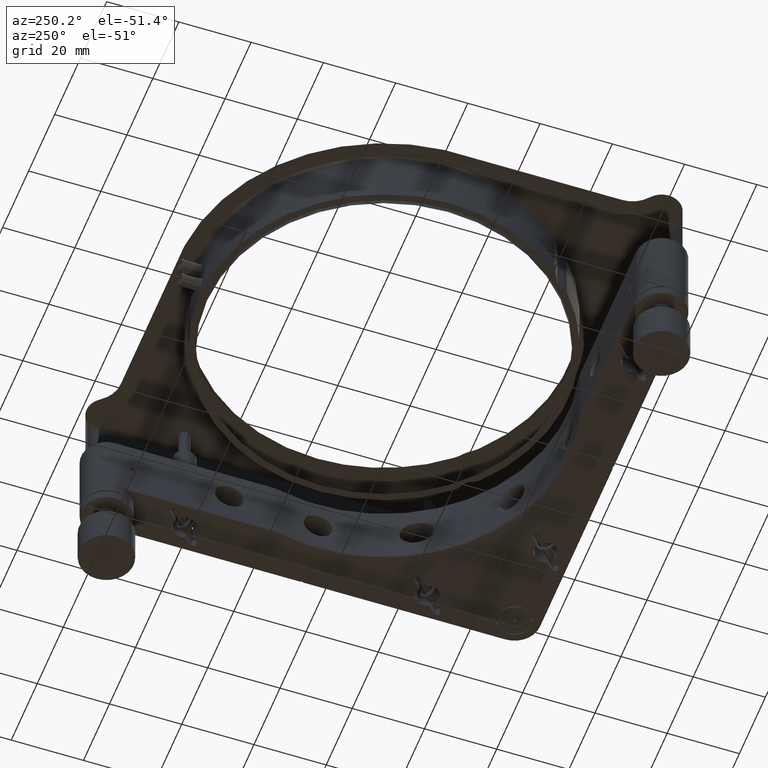
[diagram: clean part render]
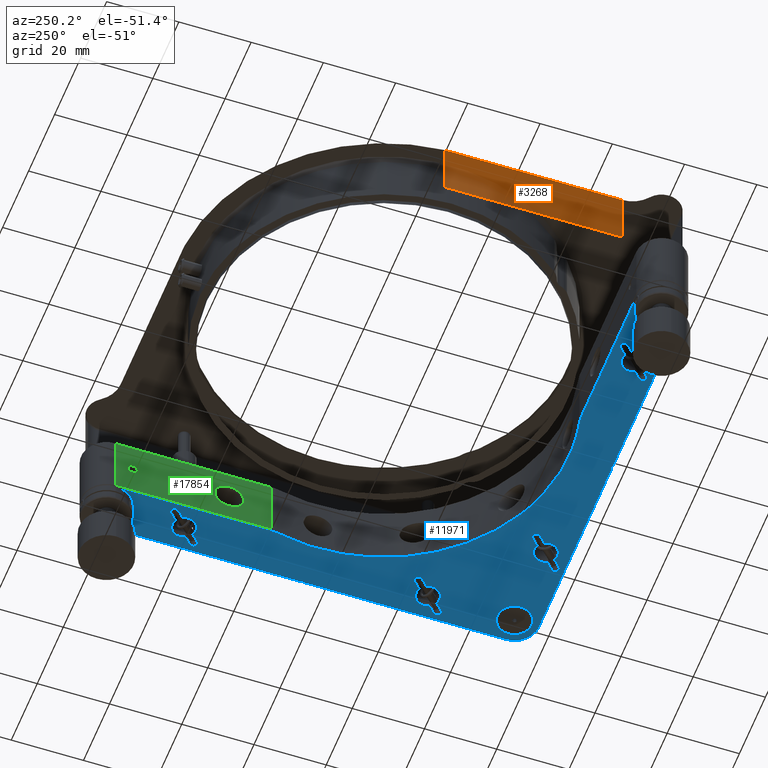
[diagram: same view with three faces highlighted in distinct colors, each labeled with its STEP entity id]
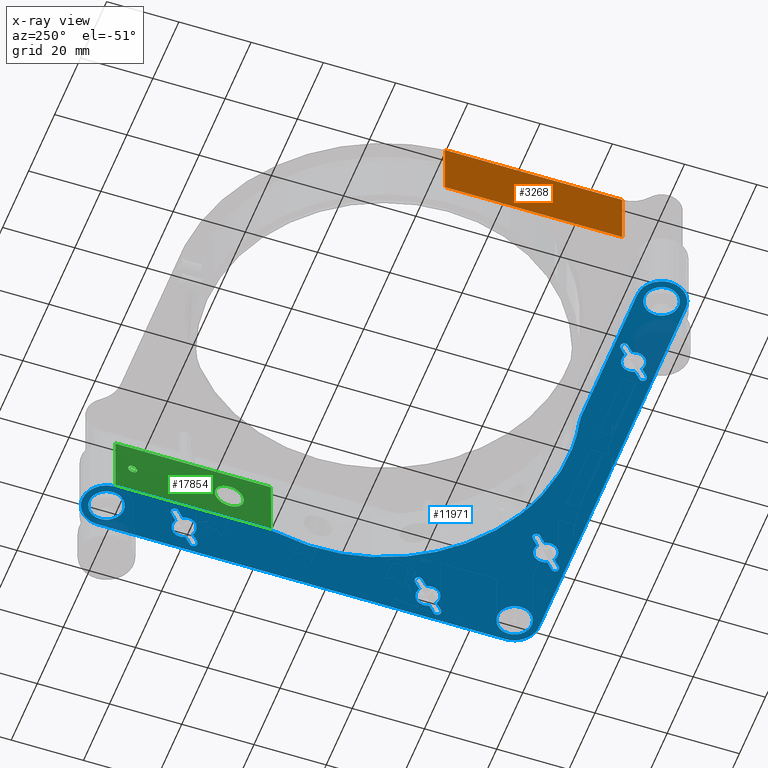
[diagram: x-ray of the same camera — body ghosted, the three highlighted faces saturated]
A machine part, auxiliary view with three faces highlighted in distinct colors.
The next image is the same camera in x-ray (body ghosted, the three faces saturated) — at least one of them is partly hidden behind the body in this view.
Their STEP definitions:

[orange] entity #3268 — the highlighted planar face has unit normal (1, -0, 0).
#416 = LINE ( 'NONE', #14178, #16532 ) ;
#829 = VERTEX_POINT ( 'NONE', #20705 ) ;
#845 = VECTOR ( 'NONE', #19253, 1000.000000000000000 ) ;
#905 = LINE ( 'NONE', #1010, #845 ) ;
#1010 = CARTESIAN_POINT ( 'NONE',  ( -56.50000000000002842, 3.117937194979367233E-14, 13.24528137423858709 ) ) ;
#1116 = DIRECTION ( 'NONE',  ( -0.000000000000000000, -0.000000000000000000, 1.000000000000000000 ) ) ;
#3268 = ADVANCED_FACE ( 'NONE', ( #21410 ), #9812, .T. ) ;
#3803 = DIRECTION ( 'NONE',  ( -6.086749038515108114E-17, -1.000000000000000000, -0.000000000000000000 ) ) ;
#4176 = LINE ( 'NONE', #16087, #19693 ) ;
#4364 = LINE ( 'NONE', #5798, #7828 ) ;
#5798 = CARTESIAN_POINT ( 'NONE',  ( -56.50000000000002132, 3.500000000000019984, 12.99528137423858709 ) ) ;
#5817 = EDGE_CURVE ( 'NONE', #14707, #19391, #416, .T. ) ;
#6754 = CARTESIAN_POINT ( 'NONE',  ( -56.50000000000002842, -45.62571841453419808, 28.74528137423860130 ) ) ;
#7059 = CARTESIAN_POINT ( 'NONE',  ( -56.50000000000002842, 3.500000000000018208, 28.74528137423860130 ) ) ;
#7108 = EDGE_CURVE ( 'NONE', #19905, #19391, #4176, .T. ) ;
#7123 = EDGE_CURVE ( 'NONE', #829, #19905, #905, .T. ) ;
#7384 = EDGE_CURVE ( 'NONE', #829, #14707, #4364, .T. ) ;
#7828 = VECTOR ( 'NONE', #12453, 1000.000000000000000 ) ;
#8466 = ORIENTED_EDGE ( 'NONE', *, *, #7123, .F. ) ;
#9812 = PLANE ( 'NONE',  #10200 ) ;
#10200 = AXIS2_PLACEMENT_3D ( 'NONE', #18133, #16381, #19766 ) ;
#12453 = DIRECTION ( 'NONE',  ( 0.000000000000000000, 0.000000000000000000, 1.000000000000000000 ) ) ;
#14113 = CARTESIAN_POINT ( 'NONE',  ( -56.50000000000003553, -45.62571841453420518, 13.24528137423858709 ) ) ;
#14178 = CARTESIAN_POINT ( 'NONE',  ( -56.50000000000002842, -50.99999999999998579, 28.74528137423860130 ) ) ;
#14707 = VERTEX_POINT ( 'NONE', #7059 ) ;
#16087 = CARTESIAN_POINT ( 'NONE',  ( -56.50000000000002842, -45.62571841453419808, 28.99528137423859420 ) ) ;
#16381 = DIRECTION ( 'NONE',  ( 1.000000000000000000, -6.086749038515108114E-17, 0.000000000000000000 ) ) ;
#16532 = VECTOR ( 'NONE', #3803, 1000.000000000000000 ) ;
#18133 = CARTESIAN_POINT ( 'NONE',  ( -56.50000000000002842, -50.99999999999998579, 12.99528137423858709 ) ) ;
#18218 = ORIENTED_EDGE ( 'NONE', *, *, #5817, .T. ) ;
#19115 = ORIENTED_EDGE ( 'NONE', *, *, #7384, .T. ) ;
#19253 = DIRECTION ( 'NONE',  ( -3.043374519257553441E-17, -1.000000000000000000, -3.043374519257553441E-17 ) ) ;
#19391 = VERTEX_POINT ( 'NONE', #6754 ) ;
#19693 = VECTOR ( 'NONE', #1116, 1000.000000000000000 ) ;
#19766 = DIRECTION ( 'NONE',  ( 6.086749038515108114E-17, 1.000000000000000000, 0.000000000000000000 ) ) ;
#19905 = VERTEX_POINT ( 'NONE', #14113 ) ;
#19987 = ORIENTED_EDGE ( 'NONE', *, *, #7108, .F. ) ;
#20236 = EDGE_LOOP ( 'NONE', ( #8466, #19115, #18218, #19987 ) ) ;
#20705 = CARTESIAN_POINT ( 'NONE',  ( -56.50000000000004263, 3.499999999999948486, 13.24528137423859242 ) ) ;
#21410 = FACE_OUTER_BOUND ( 'NONE', #20236, .T. ) ;

[blue] entity #11971 — the highlighted planar face has unit normal (0, 0, 1).
#23 = CARTESIAN_POINT ( 'NONE',  ( 52.61572909218514127, 53.76472935867825242, -9.000000000000005329 ) ) ;
#66 = ORIENTED_EDGE ( 'NONE', *, *, #9775, .F. ) ;
#72 = CARTESIAN_POINT ( 'NONE',  ( -52.19330020207240040, -54.49342146787123653, -9.000000000000001776 ) ) ;
#76 = CARTESIAN_POINT ( 'NONE',  ( -30.19167388793149343, -59.82340187157676326, -9.000000000000001776 ) ) ;
#132 = CARTESIAN_POINT ( 'NONE',  ( 51.75006740221952839, 55.89632742122822151, -9.000000000000000000 ) ) ;
#182 = CARTESIAN_POINT ( 'NONE',  ( -60.64252770726113795, -54.17432705719351560, -9.000000000000003553 ) ) ;
#249 = CARTESIAN_POINT ( 'NONE',  ( -54.67714565098375346, -60.88635300241880799, -9.000000000000001776 ) ) ;
#263 = CARTESIAN_POINT ( 'NONE',  ( 59.41731843733902707, -33.93239419684724112, -9.000000000000001776 ) ) ;
#274 = CARTESIAN_POINT ( 'NONE',  ( 61.21113804779631806, -37.40551417634071640, -9.000000000000003553 ) ) ;
#289 = CARTESIAN_POINT ( 'NONE',  ( -51.75000000000000711, -56.49999999999997868, -9.000000000000001776 ) ) ;
#321 = VECTOR ( 'NONE', #16185, 1000.000000000000000 ) ;
#360 = CARTESIAN_POINT ( 'NONE',  ( -53.83365575504912215, -60.43185075307930276, -9.000000000000001776 ) ) ;
#394 = CARTESIAN_POINT ( 'NONE',  ( -61.85776784408656681, -52.38253697615363791, -8.999999999986359356 ) ) ;
#417 = EDGE_CURVE ( 'NONE', #6091, #20478, #7504, .T. ) ;
#420 = CARTESIAN_POINT ( 'NONE',  ( -39.80832611206852789, -53.17659812842319411, -9.000000000000001776 ) ) ;
#450 = CARTESIAN_POINT ( 'NONE',  ( -11.30646084500179249, -50.03852459016398768, -8.999999999999998224 ) ) ;
#462 = B_SPLINE_CURVE_WITH_KNOTS ( 'NONE', 3,
 ( #783, #7444, #7663, #10609, #14003, #12256, #15856, #4061, #19242, #6018 ),
 .UNSPECIFIED., .F., .F.,
 ( 4, 2, 2, 2, 4 ),
 ( 0.000000000000000000, 0.2500000000000003886, 0.5000000000000000000, 0.7499999999999995559, 1.000000000000000000 ),
 .UNSPECIFIED. ) ;
#464 = ORIENTED_EDGE ( 'NONE', *, *, #8347, .T. ) ;
#466 = CARTESIAN_POINT ( 'NONE',  ( -58.22981354114872232, -60.92387003971989401, -9.000000000000003553 ) ) ;
#536 = LINE ( 'NONE', #6779, #13223 ) ;
#575 = CARTESIAN_POINT ( 'NONE',  ( -59.97458099709837143, -59.74295968162855530, -9.000000000000005329 ) ) ;
#580 = VERTEX_POINT ( 'NONE', #14491 ) ;
#583 = EDGE_CURVE ( 'NONE', #15463, #5979, #10233, .T. ) ;
#606 = ORIENTED_EDGE ( 'NONE', *, *, #5729, .T. ) ;
#632 = CARTESIAN_POINT ( 'NONE',  ( 35.41731843733904128, -57.93239419684726244, -9.000000000000001776 ) ) ;
#645 = B_SPLINE_CURVE_WITH_KNOTS ( 'NONE', 3,
 ( #9767, #5482, #7334, #2194, #5592, #8967, #20451, #4266, #672, #17606 ),
 .UNSPECIFIED., .F., .F.,
 ( 4, 2, 2, 2, 4 ),
 ( 0.000000000000000000, 0.2500000000000000000, 0.5000000000000000000, 0.7500000000000000000, 1.000000000000000000 ),
 .UNSPECIFIED. ) ;
#672 = CARTESIAN_POINT ( 'NONE',  ( -38.46918396798508155, -51.54589179152312539, -9.000000000000001776 ) ) ;
#686 = CARTESIAN_POINT ( 'NONE',  ( -53.76472935866301128, -60.38427090780242423, -9.000000000000000000 ) ) ;
#748 = CARTESIAN_POINT ( 'NONE',  ( -39.80832611206852789, -53.17659812842319411, -9.000000000000001776 ) ) ;
#751 = CARTESIAN_POINT ( 'NONE',  ( -39.90619609209767304, -53.07872814839405606, -9.000000000000001776 ) ) ;
#763 = CARTESIAN_POINT ( 'NONE',  ( 27.84184491608487377, -51.54295920108778262, -9.000000000000001776 ) ) ;
#766 = CARTESIAN_POINT ( 'NONE',  ( 61.85776784408657392, -60.61746302384633367, -9.000000000042744475 ) ) ;
#783 = CARTESIAN_POINT ( 'NONE',  ( 63.20000000003295071, 56.50000000000001421, -9.000000000000119016 ) ) ;
#838 = DIRECTION ( 'NONE',  ( -0.000000000000000000, 1.000000000000000000, 0.000000000000000000 ) ) ;
#917 = CARTESIAN_POINT ( 'NONE',  ( 54.38429196256733889, 52.24185982432843645, -9.000000000000001776 ) ) ;
#929 = CARTESIAN_POINT ( 'NONE',  ( 37.58853530232438800, -60.84069927039988812, -9.000000000000001776 ) ) ;
#950 = CARTESIAN_POINT ( 'NONE',  ( -7.715274834628323800E-15, -62.99999999999998579, -9.000000000000001776 ) ) ;
#959 = CARTESIAN_POINT ( 'NONE',  ( 52.84118642274719235, 40.05546734633642103, -9.000000000000003553 ) ) ;
#1018 = CARTESIAN_POINT ( 'NONE',  ( 58.17812340817117445, 60.94374374582077536, -9.000000000000000000 ) ) ;
#1051 = CARTESIAN_POINT ( 'NONE',  ( 63.19999999999995310, 0.000000000000000000, -9.000000000000001776 ) ) ;
#1059 = DIRECTION ( 'NONE',  ( 0.7071067811865483499, -0.7071067811865465735, 0.000000000000000000 ) ) ;
#1087 = CARTESIAN_POINT ( 'NONE',  ( 59.87424716849684359, -62.35436880199399212, -9.000000000042744475 ) ) ;
#1124 = CARTESIAN_POINT ( 'NONE',  ( 58.28574121413675613, 52.09840876550524058, -9.000000000000003553 ) ) ;
#1157 = CARTESIAN_POINT ( 'NONE',  ( 49.80000000000956106, 56.50000000000002132, -9.000000000014320989 ) ) ;
#1203 = CARTESIAN_POINT ( 'NONE',  ( 51.14223215595889371, 60.61746302381144602, -9.000000000042733816 ) ) ;
#1232 = CARTESIAN_POINT ( 'NONE',  ( 60.85748955266988247, 54.60245949544166422, -9.000000000000003553 ) ) ;
#1236 = PLANE ( 'NONE',  #19765 ) ;
#1237 = VECTOR ( 'NONE', #4356, 1000.000000000000000 ) ;
#1336 = CARTESIAN_POINT ( 'NONE',  ( 51.51793344493795956, -28.96517997630587615, -9.000000000000000000 ) ) ;
#1391 = EDGE_CURVE ( 'NONE', #4686, #4987, #20828, .T. ) ;
#1406 = CARTESIAN_POINT ( 'NONE',  ( -30.65930072960012964, -61.58853530232437379, -9.000000000000001776 ) ) ;
#1461 = ORIENTED_EDGE ( 'NONE', *, *, #12040, .F. ) ;
#1503 = CARTESIAN_POINT ( 'NONE',  ( -58.50657853212830872, -52.19330020207160459, -9.000000000000001776 ) ) ;
#1511 = LINE ( 'NONE', #9701, #18488 ) ;
#1518 = AXIS2_PLACEMENT_3D ( 'NONE', #16838, #16515, #10063 ) ;
#1523 = VERTEX_POINT ( 'NONE', #14199 ) ;
#1530 = CARTESIAN_POINT ( 'NONE',  ( 52.38253697618859661, 61.85776784404114181, -9.000000000042732040 ) ) ;
#1561 = CARTESIAN_POINT ( 'NONE',  ( 59.23527064134329834, 52.61572909220210903, -9.000000000000001776 ) ) ;
#1566 = B_SPLINE_CURVE_WITH_KNOTS ( 'NONE', 3,
 ( #19775, #9397, #6337, #3058, #1530, #1203, #14524, #7754, #7865, #8183 ),
 .UNSPECIFIED., .F., .F.,
 ( 4, 2, 2, 2, 4 ),
 ( 0.000000000000000000, 0.2500000000000006106, 0.5000000000000004441, 0.7500000000000002220, 1.000000000000000000 ),
 .UNSPECIFIED. ) ;
#1613 = CARTESIAN_POINT ( 'NONE',  ( -52.43651547129302060, -54.03494950416438058, -9.000000000000007105 ) ) ;
#1639 = EDGE_CURVE ( 'NONE', #17293, #1767, #15590, .T. ) ;
#1722 = CARTESIAN_POINT ( 'NONE',  ( -52.61572909219579941, -53.76472935866476632, -9.000000000000003553 ) ) ;
#1767 = VERTEX_POINT ( 'NONE', #15777 ) ;
#1802 = CARTESIAN_POINT ( 'NONE',  ( 52.22279189230312824, -27.38516579699316722, -9.000000000000003553 ) ) ;
#1823 = CARTESIAN_POINT ( 'NONE',  ( -61.00768735933072406, -54.99848328569061806, -9.000000000000003553 ) ) ;
#1849 = CARTESIAN_POINT ( 'NONE',  ( 29.17659812842325096, -51.69167388793144369, -9.000000000000001776 ) ) ;
#1889 = CARTESIAN_POINT ( 'NONE',  ( -51.75000000000000711, -56.49999999999997868, -9.000000000000001776 ) ) ;
#1904 = VECTOR ( 'NONE', #12467, 1000.000000000000000 ) ;
#1915 = CARTESIAN_POINT ( 'NONE',  ( 59.92058993584898730, -37.40551417634073061, -9.000000000000003553 ) ) ;
#1929 = CARTESIAN_POINT ( 'NONE',  ( -60.93028193245023516, -54.78668256051352614, -9.000000000000001776 ) ) ;
#1953 = CARTESIAN_POINT ( 'NONE',  ( 48.08258247701510157, -18.39321953587694480, -8.999999999999992895 ) ) ;
#1997 = CARTESIAN_POINT ( 'NONE',  ( -52.47946773385474017, -59.03069932900321959, -9.000000000000003553 ) ) ;
#2025 = ORIENTED_EDGE ( 'NONE', *, *, #17739, .F. ) ;
#2039 = CARTESIAN_POINT ( 'NONE',  ( 54.71425878586344993, 60.90159123449498679, -9.000000000000001776 ) ) ;
#2051 = ORIENTED_EDGE ( 'NONE', *, *, #1639, .F. ) ;
#2104 = CARTESIAN_POINT ( 'NONE',  ( -57.24676974025275200, -61.20837078069792625, -9.000000000000003553 ) ) ;
#2140 = CARTESIAN_POINT ( 'NONE',  ( 52.43816129198732057, 58.96382674026892090, -9.000000000000007105 ) ) ;
#2192 = ORIENTED_EDGE ( 'NONE', *, *, #4837, .F. ) ;
#2194 = CARTESIAN_POINT ( 'NONE',  ( -39.82436682656918236, -51.67936565307063290, -9.000000000000000000 ) ) ;
#2209 = CARTESIAN_POINT ( 'NONE',  ( -58.61570803747162017, -60.75814017564975700, -9.000000000000003553 ) ) ;
#2219 = CARTESIAN_POINT ( 'NONE',  ( -40.11586399182264984, -52.43413600817732600, -9.000000000000001776 ) ) ;
#2248 = CARTESIAN_POINT ( 'NONE',  ( -62.35436880199404186, -53.12575283150315641, -8.999999999986359356 ) ) ;
#2274 = CARTESIAN_POINT ( 'NONE',  ( -40.08980844685767408, -52.70672724801479347, -9.000000000000003553 ) ) ;
#2292 = CARTESIAN_POINT ( 'NONE',  ( 63.20000000002344365, -57.37702794913020199, -9.000000000042744475 ) ) ;
#2319 = CARTESIAN_POINT ( 'NONE',  ( -58.39754050458041945, -60.85748955265966487, -9.000000000000000000 ) ) ;
#2360 = CARTESIAN_POINT ( 'NONE',  ( 54.73400532910166305, 60.90954639733923415, -9.000000000000001776 ) ) ;
#2383 = B_SPLINE_CURVE_WITH_KNOTS ( 'NONE', 3,
 ( #10540, #9119, #7280, #17223, #12297, #394, #2248, #8909, #10336, #15579 ),
 .UNSPECIFIED., .F., .F.,
 ( 4, 2, 2, 2, 4 ),
 ( 0.000000000000000000, 0.2499999999999998335, 0.4999999999999996669, 0.7499999999999995559, 1.000000000000000000 ),
 .UNSPECIFIED. ) ;
#2402 = CARTESIAN_POINT ( 'NONE',  ( 57.37702794913023041, -63.20000000002344365, -9.000000000042748027 ) ) ;
#2424 = AXIS2_PLACEMENT_3D ( 'NONE', #12012, #5030, #18369 ) ;
#2426 = LINE ( 'NONE', #9078, #18475 ) ;
#2443 = DIRECTION ( 'NONE',  ( 0.7071067811865450192, -0.7071067811865501263, 0.000000000000000000 ) ) ;
#2445 = CARTESIAN_POINT ( 'NONE',  ( 55.24771618942260432, 51.91327876862308699, -9.000000000000003553 ) ) ;
#2520 = CARTESIAN_POINT ( 'NONE',  ( 51.38413600817730753, 38.92580476443296078, -9.000000000000001776 ) ) ;
#2545 = CARTESIAN_POINT ( 'NONE',  ( 58.82567294280340064, 60.64252770726265140, -9.000000000000000000 ) ) ;
#2549 = CARTESIAN_POINT ( 'NONE',  ( 54.60245949544184185, 52.14251044732790064, -9.000000000000003553 ) ) ;
#2568 = ORIENTED_EDGE ( 'NONE', *, *, #13147, .F. ) ;
#2610 = VECTOR ( 'NONE', #20024, 1000.000000000000114 ) ;
#2634 = CARTESIAN_POINT ( 'NONE',  ( 53.17659812842320832, -27.69167388793145435, -9.000000000000001776 ) ) ;
#2656 = CARTESIAN_POINT ( 'NONE',  ( 57.75228381058142446, 61.08672123137699117, -9.000000000000001776 ) ) ;
#2673 = CARTESIAN_POINT ( 'NONE',  ( 36.42841931322809046, -61.61586399182264273, -9.000000000000003553 ) ) ;
#2700 = EDGE_CURVE ( 'NONE', #12051, #18413, #19612, .T. ) ;
#2725 = CARTESIAN_POINT ( 'NONE',  ( 29.03081603201493266, -51.54589179152312539, -9.000000000000001776 ) ) ;
#2731 = CARTESIAN_POINT ( 'NONE',  ( 60.03706406243318128, 30.01666030040541955, -9.000000000000005329 ) ) ;
#2741 = LINE ( 'NONE', #10601, #10397 ) ;
#2787 = VERTEX_POINT ( 'NONE', #13056 ) ;
#2799 = EDGE_CURVE ( 'NONE', #18183, #9896, #18089, .T. ) ;
#2979 = VERTEX_POINT ( 'NONE', #11262 ) ;
#2980 = CARTESIAN_POINT ( 'NONE',  ( -58.25371082519845345, -63.02561693364518192, -9.000000000043211656 ) ) ;
#2984 = CARTESIAN_POINT ( 'NONE',  ( 59.36724959735529694, 52.71206006588624859, -8.999999999999998224 ) ) ;
#3058 = CARTESIAN_POINT ( 'NONE',  ( 53.12575283153176997, 62.35436880194437492, -9.000000000042732040 ) ) ;
#3077 = ORIENTED_EDGE ( 'NONE', *, *, #3746, .F. ) ;
#3085 = CARTESIAN_POINT ( 'NONE',  ( -7.677751712536720546E-15, -62.99999999999998579, -9.000000000000001776 ) ) ;
#3088 = CARTESIAN_POINT ( 'NONE',  ( 63.20000000000003126, -0.2000000000000105027, -9.000000000000000000 ) ) ;
#3108 = CARTESIAN_POINT ( 'NONE',  ( 59.41731843733900575, 33.56760580315275888, -9.000000000000001776 ) ) ;
#3142 = CARTESIAN_POINT ( 'NONE',  ( -60.52053226614431480, -53.96930067099475536, -9.000000000000000000 ) ) ;
#3151 = B_SPLINE_CURVE_WITH_KNOTS ( 'NONE', 3,
 ( #5874, #14283, #11003, #17681, #9365, #19203, #15928, #959, #9473, #9582 ),
 .UNSPECIFIED., .F., .F.,
 ( 4, 2, 2, 2, 4 ),
 ( 0.000000000000000000, 0.2500000000000000000, 0.5000000000000000000, 0.7500000000000000000, 1.000000000000000000 ),
 .UNSPECIFIED. ) ;
#3162 = ORIENTED_EDGE ( 'NONE', *, *, #12581, .F. ) ;
#3165 = CARTESIAN_POINT ( 'NONE',  ( -7.104803007578783358, -50.98791069241241303, -8.999999999999992895 ) ) ;
#3192 = CARTESIAN_POINT ( 'NONE',  ( 60.93028607926644469, 54.78669303848499084, -9.000000000000003553 ) ) ;
#3243 = CARTESIAN_POINT ( 'NONE',  ( -54.17432705717892816, -52.35747229274698356, -9.000000000000001776 ) ) ;
#3249 = CARTESIAN_POINT ( 'NONE',  ( -31.57941006415103402, -61.40551417634075193, -9.000000000000005329 ) ) ;
#3282 = B_SPLINE_CURVE_WITH_KNOTS ( 'NONE', 3,
 ( #9169, #19558, #4474, #19119, #15839, #7861, #14309, #6002, #12668, #9605, #19339, #4583, #19225, #16058, #17815, #2731, #7642, #20982 ),
 .UNSPECIFIED., .F., .F.,
 ( 4, 2, 2, 2, 2, 2, 2, 2, 4 ),
 ( 0.000000000000000000, 0.1250000000000025535, 0.2500000000000021649, 0.3750000000000017764, 0.5000000000000013323, 0.6250000000000009992, 0.7500000000000006661, 0.8750000000000003331, 1.000000000000000000 ),
 .UNSPECIFIED. ) ;
#3285 = EDGE_LOOP ( 'NONE', ( #18355, #15929, #9794, #3162, #8312, #9813, #13195, #2025, #8526 ) ) ;
#3298 = CARTESIAN_POINT ( 'NONE',  ( 58.32285434901965004, 52.11364699758325258, -9.000000000000000000 ) ) ;
#3307 = AXIS2_PLACEMENT_3D ( 'NONE', #16311, #21124, #11165 ) ;
#3328 = CARTESIAN_POINT ( 'NONE',  ( 59.41731843733902707, -33.93239419684724112, -9.000000000000001776 ) ) ;
#3351 = CARTESIAN_POINT ( 'NONE',  ( -54.38429196254767106, -52.24185982434065778, -9.000000000000001776 ) ) ;
#3413 = CARTESIAN_POINT ( 'NONE',  ( 51.79162921930203112, 57.24676974022771248, -9.000000000000003553 ) ) ;
#3448 = CARTESIAN_POINT ( 'NONE',  ( 61.40551417634073772, -35.92058993584895177, -9.000000000000001776 ) ) ;
#3461 = ORIENTED_EDGE ( 'NONE', *, *, #19900, .F. ) ;
#3463 = CARTESIAN_POINT ( 'NONE',  ( -52.13683938222316527, -54.62165415749726094, -9.000000000000000000 ) ) ;
#3529 = CARTESIAN_POINT ( 'NONE',  ( -58.82567294283622772, -60.64252770724549180, -9.000000000000001776 ) ) ;
#3566 = CARTESIAN_POINT ( 'NONE',  ( -51.86116852331782923, -55.31298374493062653, -9.000000000000005329 ) ) ;
#3589 = CARTESIAN_POINT ( 'NONE',  ( 51.14956444208531394, -5.828148929024089320, -8.999999999999992895 ) ) ;
#3633 = EDGE_CURVE ( 'NONE', #7645, #14099, #5327, .T. ) ;
#3635 = CARTESIAN_POINT ( 'NONE',  ( -52.06971806754976484, -58.21331743948633175, -9.000000000000005329 ) ) ;
#3669 = CARTESIAN_POINT ( 'NONE',  ( 27.38413600817735727, -52.43413600817732600, -9.000000000000001776 ) ) ;
#3684 = DIRECTION ( 'NONE',  ( -0.7071067811865449082, 0.7071067811865501263, 0.000000000000000000 ) ) ;
#3713 = ORIENTED_EDGE ( 'NONE', *, *, #8163, .F. ) ;
#3738 = CARTESIAN_POINT ( 'NONE',  ( -55.89632742119958664, -61.24993259778042187, -9.000000000000003553 ) ) ;
#3746 = EDGE_CURVE ( 'NONE', #8749, #5999, #18979, .T. ) ;
#3781 = CARTESIAN_POINT ( 'NONE',  ( 52.47946773385573493, 59.03069932900373828, -9.000000000000001776 ) ) ;
#3851 = CARTESIAN_POINT ( 'NONE',  ( -55.31281334781579062, -61.13876399658981597, -9.000000000000005329 ) ) ;
#3905 = CARTESIAN_POINT ( 'NONE',  ( 59.82340187157675615, 30.19167388793152185, -9.000000000000001776 ) ) ;
#3926 = CARTESIAN_POINT ( 'NONE',  ( 33.93239419684726954, -59.41731843733901997, -9.000000000000001776 ) ) ;
#3950 = CARTESIAN_POINT ( 'NONE',  ( 29.17659812842325096, -51.69167388793144369, -9.000000000000001776 ) ) ;
#3957 = CARTESIAN_POINT ( 'NONE',  ( -54.03494950416347109, -60.56348452870709309, -9.000000000000005329 ) ) ;
#4061 = CARTESIAN_POINT ( 'NONE',  ( 58.25371082521331800, 63.02561693370058293, -8.999999999985924148 ) ) ;
#4070 = VECTOR ( 'NONE', #11604, 1000.000000000000000 ) ;
#4189 = CARTESIAN_POINT ( 'NONE',  ( 54.82187659182953610, 52.05625625417929569, -9.000000000000001776 ) ) ;
#4203 = CARTESIAN_POINT ( 'NONE',  ( 37.48333969959461598, -61.09466392121208145, -9.000000000000003553 ) ) ;
#4215 = CARTESIAN_POINT ( 'NONE',  ( 53.83365575505231959, 60.43185075308129228, -9.000000000000000000 ) ) ;
#4247 = CARTESIAN_POINT ( 'NONE',  ( 0.000000000000000000, -49.80000000000006111, -9.000000000000001776 ) ) ;
#4266 = CARTESIAN_POINT ( 'NONE',  ( -38.65881357725276501, -51.44453265366355055, -9.000000000000003553 ) ) ;
#4273 = VECTOR ( 'NONE', #5819, 1000.000000000000114 ) ;
#4282 = CARTESIAN_POINT ( 'NONE',  ( -61.25000000000000711, -56.49999999999997868, -9.000000000000001776 ) ) ;
#4310 = CARTESIAN_POINT ( 'NONE',  ( 36.84069927039989523, -61.58853530232438089, -9.000000000000003553 ) ) ;
#4356 = DIRECTION ( 'NONE',  ( -1.000000000000000000, -0.000000000000000000, 0.000000000000000000 ) ) ;
#4374 = VERTEX_POINT ( 'NONE', #19799 ) ;
#4398 = CARTESIAN_POINT ( 'NONE',  ( 59.62710963770566508, 60.09035226865926660, -9.000000000000001776 ) ) ;
#4447 = ORIENTED_EDGE ( 'NONE', *, *, #11392, .F. ) ;
#4474 = CARTESIAN_POINT ( 'NONE',  ( 61.48333969959460177, 31.46293593756685425, -9.000000000000005329 ) ) ;
#4481 = EDGE_CURVE ( 'NONE', #7645, #18413, #16525, .T. ) ;
#4509 = CARTESIAN_POINT ( 'NONE',  ( 56.49999999999996447, 51.75000000000003553, -9.000000000000001776 ) ) ;
#4514 = FACE_BOUND ( 'NONE', #5902, .T. ) ;
#4533 = ORIENTED_EDGE ( 'NONE', *, *, #5790, .F. ) ;
#4583 = CARTESIAN_POINT ( 'NONE',  ( 60.84069927039988812, 29.91146469767566884, -9.000000000000005329 ) ) ;
#4587 = CARTESIAN_POINT ( 'NONE',  ( -12.72580748354676317, -49.80000000000006821, -8.999999999999998224 ) ) ;
#4613 = CARTESIAN_POINT ( 'NONE',  ( -60.61746302381141760, -61.85776784404107786, -9.000000000043209880 ) ) ;
#4616 = CARTESIAN_POINT ( 'NONE',  ( 57.10419963160661894, 51.75000000000003553, -9.000000000000001776 ) ) ;
#4635 = CARTESIAN_POINT ( 'NONE',  ( 35.92058993584899440, -61.40551417634075193, -9.000000000000003553 ) ) ;
#4642 = CARTESIAN_POINT ( 'NONE',  ( 51.69167388793144369, 38.32340187157678457, -9.000000000000001776 ) ) ;
#4686 = VERTEX_POINT ( 'NONE', #16954 ) ;
#4727 = CARTESIAN_POINT ( 'NONE',  ( 60.56183870800835933, 54.03617325972373209, -9.000000000000005329 ) ) ;
#4752 = CARTESIAN_POINT ( 'NONE',  ( -31.67659812842325096, -61.30832611206851368, -9.000000000000001776 ) ) ;
#4834 = CARTESIAN_POINT ( 'NONE',  ( 53.02541900288656507, 53.25704031839289598, -9.000000000000003553 ) ) ;
#4837 = EDGE_CURVE ( 'NONE', #9896, #16252, #3282, .T. ) ;
#4888 = CARTESIAN_POINT ( 'NONE',  ( -58.32285434901569943, -52.11364699758090779, -9.000000000000001776 ) ) ;
#4892 = CARTESIAN_POINT ( 'NONE',  ( -31.07158068677193796, -61.61586399182264984, -9.000000000000003553 ) ) ;
#4938 = CARTESIAN_POINT ( 'NONE',  ( 58.75805406402239583, 52.31560286451717445, -9.000000000000003553 ) ) ;
#4979 = CARTESIAN_POINT ( 'NONE',  ( 59.82340187157677036, -37.30832611206850657, -9.000000000000001776 ) ) ;
#4987 = VERTEX_POINT ( 'NONE', #13429 ) ;
#4993 = CARTESIAN_POINT ( 'NONE',  ( -60.29651432686570445, -53.62656567312365041, -9.000000000000003553 ) ) ;
#5008 = ORIENTED_EDGE ( 'NONE', *, *, #10697, .T. ) ;
#5016 = CARTESIAN_POINT ( 'NONE',  ( -11.30646084500179249, -50.03852459016398768, -8.999999999999998224 ) ) ;
#5022 = DIRECTION ( 'NONE',  ( -1.000000000000000000, 0.000000000000000000, 0.000000000000000000 ) ) ;
#5030 = DIRECTION ( 'NONE',  ( 0.000000000000000000, 0.000000000000000000, 1.000000000000000000 ) ) ;
#5053 = CARTESIAN_POINT ( 'NONE',  ( 52.07612996028195340, 58.22981354115255215, -9.000000000000001776 ) ) ;
#5102 = CARTESIAN_POINT ( 'NONE',  ( -54.82189704881988490, -52.05624815801419203, -8.999999999999998224 ) ) ;
#5149 = VERTEX_POINT ( 'NONE', #632 ) ;
#5189 = CARTESIAN_POINT ( 'NONE',  ( 51.67563317343073948, -27.67936565307065422, -9.000000000000000000 ) ) ;
#5209 = CARTESIAN_POINT ( 'NONE',  ( -58.26598934598872859, -52.09045149390789931, -9.000000000000000000 ) ) ;
#5213 = CARTESIAN_POINT ( 'NONE',  ( -30.09448582365928360, -61.21113804779631096, -9.000000000000001776 ) ) ;
#5277 = CARTESIAN_POINT ( 'NONE',  ( -58.21330696151593287, -60.93028607926645890, -9.000000000000001776 ) ) ;
#5327 = LINE ( 'NONE', #11990, #6036 ) ;
#5338 = VECTOR ( 'NONE', #10668, 1000.000000000000000 ) ;
#5389 = CARTESIAN_POINT ( 'NONE',  ( -51.91327876862305857, -57.75228381058128235, -9.000000000000003553 ) ) ;
#5393 = ORIENTED_EDGE ( 'NONE', *, *, #10317, .T. ) ;
#5482 = CARTESIAN_POINT ( 'NONE',  ( -40.11586399182264984, -52.22796899028548268, -9.000000000000001776 ) ) ;
#5496 = CARTESIAN_POINT ( 'NONE',  ( -52.07612996028171892, -58.22981354115184871, -9.000000000000003553 ) ) ;
#5537 = CARTESIAN_POINT ( 'NONE',  ( 53.76472935866471659, 60.38427090780329820, -9.000000000000001776 ) ) ;
#5558 = DIRECTION ( 'NONE',  ( 0.7071067811865466846, 0.7071067811865483499, 0.000000000000000000 ) ) ;
#5587 = CARTESIAN_POINT ( 'NONE',  ( -33.56760580315273756, -59.41731843733901997, -9.000000000000001776 ) ) ;
#5592 = CARTESIAN_POINT ( 'NONE',  ( -39.65815508391514754, -51.54295920108778262, -9.000000000000001776 ) ) ;
#5604 = CARTESIAN_POINT ( 'NONE',  ( -52.14251044732728246, -58.39754050455507439, -9.000000000000001776 ) ) ;
#5729 = EDGE_CURVE ( 'NONE', #18183, #17860, #10946, .T. ) ;
#5790 = EDGE_CURVE ( 'NONE', #12973, #20985, #9259, .T. ) ;
#5797 = CARTESIAN_POINT ( 'NONE',  ( 63.20000000000589324, -56.49999999999997868, -9.000000000010686563 ) ) ;
#5813 = VECTOR ( 'NONE', #8692, 1000.000000000000114 ) ;
#5819 = DIRECTION ( 'NONE',  ( 0.7071067811865501263, -0.7071067811865450192, 0.000000000000000000 ) ) ;
#5847 = CARTESIAN_POINT ( 'NONE',  ( 37.58853530232438089, -60.29102871324538171, -9.000000000000000000 ) ) ;
#5874 = CARTESIAN_POINT ( 'NONE',  ( 51.38413600817730043, 39.06586399182266689, -9.000000000000001776 ) ) ;
#5892 = CARTESIAN_POINT ( 'NONE',  ( 27.38413600817735727, -52.43413600817732600, -9.000000000000001776 ) ) ;
#5894 = VERTEX_POINT ( 'NONE', #12217 ) ;
#5902 = EDGE_LOOP ( 'NONE', ( #7131, #15086 ) ) ;
#5910 = CARTESIAN_POINT ( 'NONE',  ( 31.06760580315273756, -53.58268156266093030, -9.000000000000001776 ) ) ;
#5979 = VERTEX_POINT ( 'NONE', #12645 ) ;
#5999 = VERTEX_POINT ( 'NONE', #14683 ) ;
#6002 = CARTESIAN_POINT ( 'NONE',  ( 61.48333969959461598, 30.40533607878796829, -9.000000000000007105 ) ) ;
#6018 = CARTESIAN_POINT ( 'NONE',  ( 56.49999999999997868, 63.19999999999696882, -9.000000000020008883 ) ) ;
#6036 = VECTOR ( 'NONE', #3684, 1000.000000000000000 ) ;
#6064 = VERTEX_POINT ( 'NONE', #13492 ) ;
#6091 = VERTEX_POINT ( 'NONE', #20587 ) ;
#6102 = CARTESIAN_POINT ( 'NONE',  ( 63.19999999999995310, 0.1999999999999997335, -9.000000000000001776 ) ) ;
#6149 = CARTESIAN_POINT ( 'NONE',  ( 58.26599467089821616, 52.09045360266085112, -9.000000000000003553 ) ) ;
#6151 = VECTOR ( 'NONE', #15232, 1000.000000000000114 ) ;
#6215 = CARTESIAN_POINT ( 'NONE',  ( -37.91731843733904839, -55.06760580315268783, -9.000000000000001776 ) ) ;
#6260 = CARTESIAN_POINT ( 'NONE',  ( 60.56348452871179688, 58.96505049582618341, -9.000000000000000000 ) ) ;
#6337 = CARTESIAN_POINT ( 'NONE',  ( 54.74628917480155366, 63.02561693364523876, -9.000000000042730264 ) ) ;
#6369 = CARTESIAN_POINT ( 'NONE',  ( 52.24185982432378950, 58.61570803741824420, -9.000000000000003553 ) ) ;
#6428 = VECTOR ( 'NONE', #7960, 1000.000000000000000 ) ;
#6480 = CARTESIAN_POINT ( 'NONE',  ( 52.11364699757844932, 54.67714565098989254, -9.000000000000003553 ) ) ;
#6484 = EDGE_CURVE ( 'NONE', #2979, #7184, #15659, .T. ) ;
#6501 = VERTEX_POINT ( 'NONE', #7356 ) ;
#6530 = B_SPLINE_CURVE_WITH_KNOTS ( 'NONE', 3,
 ( #6617, #19945, #11627, #5189, #18423, #1802, #8451, #14023, #18634, #13925 ),
 .UNSPECIFIED., .F., .F.,
 ( 4, 2, 2, 2, 4 ),
 ( 0.000000000000000000, 0.2500000000000000000, 0.5000000000000000000, 0.7500000000000000000, 1.000000000000000000 ),
 .UNSPECIFIED. ) ;
#6533 = ORIENTED_EDGE ( 'NONE', *, *, #19948, .F. ) ;
#6535 = CARTESIAN_POINT ( 'NONE',  ( -60.75814017566968062, -54.38429196256621623, -9.000000000000000000 ) ) ;
#6540 = CARTESIAN_POINT ( 'NONE',  ( 50.03852459016398768, 11.30646084500179249, -8.999999999999998224 ) ) ;
#6574 = VERTEX_POINT ( 'NONE', #14883 ) ;
#6584 = LINE ( 'NONE', #11594, #2610 ) ;
#6585 = CARTESIAN_POINT ( 'NONE',  ( 58.96505049584398250, 52.43651547129742596, -9.000000000000003553 ) ) ;
#6590 = CARTESIAN_POINT ( 'NONE',  ( 52.05624815801419913, 58.17810295117794084, -9.000000000000001776 ) ) ;
#6617 = CARTESIAN_POINT ( 'NONE',  ( 51.38413600817732885, -28.43413600817734022, -9.000000000000001776 ) ) ;
#6627 = CARTESIAN_POINT ( 'NONE',  ( 61.61586399182266405, -36.42841931322805493, -9.000000000000001776 ) ) ;
#6641 = CARTESIAN_POINT ( 'NONE',  ( -61.20831180375583358, -55.75308123972190799, -9.000000000000003553 ) ) ;
#6645 = CARTESIAN_POINT ( 'NONE',  ( -31.20897128675462540, -61.58853530232438089, -9.000000000000001776 ) ) ;
#6646 = CARTESIAN_POINT ( 'NONE',  ( 49.80000000000006821, 12.72580748354677205, -8.999999999999991118 ) ) ;
#6684 = VERTEX_POINT ( 'NONE', #20027 ) ;
#6693 = CARTESIAN_POINT ( 'NONE',  ( 52.56814924692355362, 53.83365575504254963, -9.000000000000001776 ) ) ;
#6705 = VERTEX_POINT ( 'NONE', #450 ) ;
#6724 = EDGE_CURVE ( 'NONE', #12757, #6684, #8860, .T. ) ;
#6741 = B_SPLINE_CURVE_WITH_KNOTS ( 'NONE', 3,
 ( #21619, #6646, #13307, #6540 ),
 .UNSPECIFIED., .F., .F.,
 ( 4, 4 ),
 ( 0.000000000000000000, 1.000000000000000000 ),
 .UNSPECIFIED. ) ;
#6746 = CARTESIAN_POINT ( 'NONE',  ( -53.96930067099931705, -52.47946773385217512, -9.000000000000003553 ) ) ;
#6752 = CARTESIAN_POINT ( 'NONE',  ( -31.46293593756683293, -61.48333969959461598, -9.000000000000003553 ) ) ;
#6771 = CARTESIAN_POINT ( 'NONE',  ( 41.98055720833768589, -29.79728308137187298, -8.999999999999992895 ) ) ;
#6779 = CARTESIAN_POINT ( 'NONE',  ( 59.82340187157677036, -37.30832611206850657, -9.000000000000001776 ) ) ;
#6823 = VERTEX_POINT ( 'NONE', #5910 ) ;
#6864 = EDGE_CURVE ( 'NONE', #9224, #13831, #15359, .T. ) ;
#6919 = CARTESIAN_POINT ( 'NONE',  ( -54.71425878586504155, -60.90159123449586787, -9.000000000000005329 ) ) ;
#6941 = CARTESIAN_POINT ( 'NONE',  ( 53.58268156266092319, 36.43239419684731928, -9.000000000000001776 ) ) ;
#6964 = EDGE_CURVE ( 'NONE', #15065, #7213, #13820, .T. ) ;
#6969 = DIRECTION ( 'NONE',  ( -0.7071067811865462405, 0.7071067811865489050, 0.000000000000000000 ) ) ;
#6997 = EDGE_CURVE ( 'NONE', #15463, #11679, #19366, .T. ) ;
#7131 = ORIENTED_EDGE ( 'NONE', *, *, #6964, .F. ) ;
#7133 = CARTESIAN_POINT ( 'NONE',  ( -58.96382674029559467, -60.56183870799942071, -9.000000000000003553 ) ) ;
#7170 = LINE ( 'NONE', #15465, #5813 ) ;
#7173 = CARTESIAN_POINT ( 'NONE',  ( 54.24194593597936631, 60.68439713548398373, -9.000000000000001776 ) ) ;
#7177 = CARTESIAN_POINT ( 'NONE',  ( 61.30832611206850657, 31.67659812842327938, -9.000000000000001776 ) ) ;
#7184 = VERTEX_POINT ( 'NONE', #8097 ) ;
#7213 = VERTEX_POINT ( 'NONE', #13131 ) ;
#7217 = CARTESIAN_POINT ( 'NONE',  ( 53.17659812842318701, 39.80832611206854921, -9.000000000000001776 ) ) ;
#7243 = CARTESIAN_POINT ( 'NONE',  ( -60.38427090780167106, -59.23527064134050590, -9.000000000000000000 ) ) ;
#7250 = CARTESIAN_POINT ( 'NONE',  ( 60.13857027040673842, 59.56117267460881237, -9.000000000000003553 ) ) ;
#7280 = CARTESIAN_POINT ( 'NONE',  ( -58.25371082521333221, -49.97438306629942417, -8.999999999986359356 ) ) ;
#7283 = CARTESIAN_POINT ( 'NONE',  ( -31.67659812842325096, -61.30832611206851368, -9.000000000000001776 ) ) ;
#7319 = CARTESIAN_POINT ( 'NONE',  ( 28.22279189230317087, -51.38516579699314946, -9.000000000000003553 ) ) ;
#7334 = CARTESIAN_POINT ( 'NONE',  ( -40.05344734291143283, -52.02220887394283722, -9.000000000000003553 ) ) ;
#7347 = CARTESIAN_POINT ( 'NONE',  ( -59.37343432688660272, -60.29651432685329837, -9.000000000000001776 ) ) ;
#7356 = CARTESIAN_POINT ( 'NONE',  ( 50.03852459016398768, 11.30646084500179249, -8.999999999999998224 ) ) ;
#7371 = VERTEX_POINT ( 'NONE', #9391 ) ;
#7385 = CARTESIAN_POINT ( 'NONE',  ( 52.90964773133666199, 59.62710963770798855, -9.000000000000001776 ) ) ;
#7410 = CARTESIAN_POINT ( 'NONE',  ( -40.11586399182264984, -52.57419523556777108, -9.000000000000001776 ) ) ;
#7429 = EDGE_LOOP ( 'NONE', ( #13241, #3077, #21304, #20879, #9979, #4447, #8345, #20279, #2568, #11081, #66, #18146, #14904, #3713, #4533, #3461, #19094, #2051 ) ) ;
#7444 = CARTESIAN_POINT ( 'NONE',  ( 63.20000000002344365, 57.37702794913023752, -8.999999999985924148 ) ) ;
#7450 = VERTEX_POINT ( 'NONE', #17594 ) ;
#7453 = CARTESIAN_POINT ( 'NONE',  ( -61.24999999999999289, -57.10419963161067614, -8.999999999999998224 ) ) ;
#7476 = CARTESIAN_POINT ( 'NONE',  ( 37.40551417634073772, -59.92058993584898019, -9.000000000000001776 ) ) ;
#7504 = LINE ( 'NONE', #20521, #5338 ) ;
#7513 = CARTESIAN_POINT ( 'NONE',  ( 62.99999999999998579, 3.569289505518225284E-14, -9.000000000000001776 ) ) ;
#7532 = EDGE_CURVE ( 'NONE', #580, #7371, #19648, .T. ) ;
#7541 = CARTESIAN_POINT ( 'NONE',  ( 56.49999999999999289, -63.20000000003299334, -9.000000000000113687 ) ) ;
#7572 = CARTESIAN_POINT ( 'NONE',  ( 54.17432705719438957, 52.35747229273739123, -9.000000000000001776 ) ) ;
#7586 = CARTESIAN_POINT ( 'NONE',  ( 37.40551417634074483, -61.21113804779631096, -9.000000000000001776 ) ) ;
#7642 = CARTESIAN_POINT ( 'NONE',  ( 59.92058993584897308, 30.09448582365931202, -9.000000000000003553 ) ) ;
#7645 = VERTEX_POINT ( 'NONE', #6215 ) ;
#7663 = CARTESIAN_POINT ( 'NONE',  ( 63.02561693370054030, 58.25371082521333221, -8.999999999985922372 ) ) ;
#7679 = CARTESIAN_POINT ( 'NONE',  ( 58.61570803742986158, 60.75814017567159908, -9.000000000000003553 ) ) ;
#7746 = ORIENTED_EDGE ( 'NONE', *, *, #13015, .F. ) ;
#7754 = CARTESIAN_POINT ( 'NONE',  ( 49.97438306635480387, 58.25371082519846766, -9.000000000042735593 ) ) ;
#7787 = CARTESIAN_POINT ( 'NONE',  ( 58.50657853213976978, 52.19330020207821974, -9.000000000000001776 ) ) ;
#7802 = ORIENTED_EDGE ( 'NONE', *, *, #6484, .F. ) ;
#7861 = CARTESIAN_POINT ( 'NONE',  ( 61.61586399182262852, 30.79669132958285260, -9.000000000000005329 ) ) ;
#7865 = CARTESIAN_POINT ( 'NONE',  ( 49.80000000003339267, 57.37702794912281945, -9.000000000042730264 ) ) ;
#7960 = DIRECTION ( 'NONE',  ( 1.000000000000000000, 0.000000000000000000, -0.000000000000000000 ) ) ;
#7961 = EDGE_CURVE ( 'NONE', #7184, #12051, #15036, .T. ) ;
#7971 = ORIENTED_EDGE ( 'NONE', *, *, #18999, .F. ) ;
#7999 = CARTESIAN_POINT ( 'NONE',  ( -63.19999999999695461, -56.50000000000000711, -9.000000000008823164 ) ) ;
#8006 = CARTESIAN_POINT ( 'NONE',  ( 52.43651547128701651, 54.03494950417668719, -9.000000000000003553 ) ) ;
#8009 = CARTESIAN_POINT ( 'NONE',  ( 62.99999999999998579, 3.607250968393635336E-14, -9.000000000000001776 ) ) ;
#8017 = VERTEX_POINT ( 'NONE', #20725 ) ;
#8071 = EDGE_LOOP ( 'NONE', ( #7746, #21468, #14976, #14948, #5008, #15413, #7971, #15058, #464 ) ) ;
#8096 = CARTESIAN_POINT ( 'NONE',  ( 51.38413600817732885, -28.57419523556681895, -9.000000000000001776 ) ) ;
#8097 = CARTESIAN_POINT ( 'NONE',  ( -30.19167388793149343, -59.82340187157676326, -9.000000000000001776 ) ) ;
#8146 = CARTESIAN_POINT ( 'NONE',  ( 60.70330867041720069, -37.61586399182262852, -9.000000000000001776 ) ) ;
#8160 = CARTESIAN_POINT ( 'NONE',  ( -53.62656567310557421, -52.70348567314817245, -9.000000000000005329 ) ) ;
#8163 = EDGE_CURVE ( 'NONE', #20985, #16224, #11092, .T. ) ;
#8183 = CARTESIAN_POINT ( 'NONE',  ( 49.80000000000956106, 56.50000000000002132, -9.000000000014320989 ) ) ;
#8184 = CARTESIAN_POINT ( 'NONE',  ( 39.32049830668692891, -33.22865744305291003, -8.999999999999992895 ) ) ;
#8215 = CARTESIAN_POINT ( 'NONE',  ( 59.16634424494708355, 52.56814924691841640, -9.000000000000000000 ) ) ;
#8219 = CARTESIAN_POINT ( 'NONE',  ( 52.71206006585960324, 53.63275040267854621, -9.000000000000001776 ) ) ;
#8233 = VERTEX_POINT ( 'NONE', #1157 ) ;
#8265 = CARTESIAN_POINT ( 'NONE',  ( -54.60245949543061528, -52.14251044733487106, -9.000000000000003553 ) ) ;
#8279 = ORIENTED_EDGE ( 'NONE', *, *, #20221, .T. ) ;
#8299 = CARTESIAN_POINT ( 'NONE',  ( -38.32340187157676326, -51.69167388793144369, -9.000000000000001776 ) ) ;
#8312 = ORIENTED_EDGE ( 'NONE', *, *, #1391, .T. ) ;
#8324 = CARTESIAN_POINT ( 'NONE',  ( 52.86142972957199504, 53.43882732542164860, -9.000000000000000000 ) ) ;
#8345 = ORIENTED_EDGE ( 'NONE', *, *, #9913, .F. ) ;
#8347 = EDGE_CURVE ( 'NONE', #5149, #6823, #15860, .T. ) ;
#8361 = DIRECTION ( 'NONE',  ( -1.000000000000000000, 0.000000000000000000, 0.000000000000000000 ) ) ;
#8374 = CARTESIAN_POINT ( 'NONE',  ( -52.56814924692061908, -53.83365575504866030, -9.000000000000003553 ) ) ;
#8426 = CARTESIAN_POINT ( 'NONE',  ( 51.74996629889016475, 56.80183628938591767, -9.000000000000001776 ) ) ;
#8451 = CARTESIAN_POINT ( 'NONE',  ( 52.43677526984134118, -27.36409027384432235, -9.000000000000001776 ) ) ;
#8461 = CARTESIAN_POINT ( 'NONE',  ( 60.42841931322809046, -37.61586399182262141, -9.000000000000003553 ) ) ;
#8475 = CARTESIAN_POINT ( 'NONE',  ( -59.74295968162965664, -53.02541900290378152, -9.000000000000003553 ) ) ;
#8526 = ORIENTED_EDGE ( 'NONE', *, *, #9830, .F. ) ;
#8542 = B_SPLINE_CURVE_WITH_KNOTS ( 'NONE', 3,
 ( #9444, #7476, #19172, #5847, #14143, #12508, #929, #4203, #7586, #20930, #19281, #4310, #10970, #2673, #21467, #9869, #4635, #19607 ),
 .UNSPECIFIED., .F., .F.,
 ( 4, 2, 2, 2, 2, 2, 2, 2, 4 ),
 ( 0.000000000000000000, 0.1250000000000000000, 0.2500000000000000000, 0.3750000000000000000, 0.5000000000000000000, 0.6250000000000000000, 0.7500000000000000000, 0.8750000000000000000, 1.000000000000000000 ),
 .UNSPECIFIED. ) ;
#8544 = CARTESIAN_POINT ( 'NONE',  ( -53.25704031837550900, -59.97458099709920987, -9.000000000000003553 ) ) ;
#8567 = DIRECTION ( 'NONE',  ( -1.000000000000000000, 0.000000000000000000, 0.000000000000000000 ) ) ;
#8573 = EDGE_CURVE ( 'NONE', #5149, #8017, #6584, .T. ) ;
#8584 = CARTESIAN_POINT ( 'NONE',  ( -59.56117267461772258, -52.86142972960215758, -9.000000000000003553 ) ) ;
#8589 = EDGE_CURVE ( 'NONE', #7371, #8749, #11488, .T. ) ;
#8594 = CARTESIAN_POINT ( 'NONE',  ( 35.82340187157677036, -61.30832611206852789, -9.000000000000001776 ) ) ;
#8655 = CARTESIAN_POINT ( 'NONE',  ( -54.24194593599069947, -60.68439713549069836, -8.999999999999998224 ) ) ;
#8692 = DIRECTION ( 'NONE',  ( -0.7071067811865501263, 0.7071067811865450192, 0.000000000000000000 ) ) ;
#8718 = CARTESIAN_POINT ( 'NONE',  ( 53.58268156266093740, -31.06760580315270914, -9.000000000000003553 ) ) ;
#8749 = VERTEX_POINT ( 'NONE', #3085 ) ;
#8762 = CARTESIAN_POINT ( 'NONE',  ( -58.00145151804826327, -61.00771316174284919, -9.000000000000003553 ) ) ;
#8816 = VECTOR ( 'NONE', #1059, 1000.000000000000114 ) ;
#8823 = DIRECTION ( 'NONE',  ( -1.000000000000000000, 0.000000000000000000, 0.000000000000000000 ) ) ;
#8860 = LINE ( 'NONE', #2634, #1904 ) ;
#8872 = CARTESIAN_POINT ( 'NONE',  ( -59.62710963771161232, -60.09035226865120904, -9.000000000000001776 ) ) ;
#8909 = CARTESIAN_POINT ( 'NONE',  ( -63.02561693370061136, -54.74628917478669621, -8.999999999986361132 ) ) ;
#8965 = LINE ( 'NONE', #9071, #9358 ) ;
#8967 = CARTESIAN_POINT ( 'NONE',  ( -39.27720810769682913, -51.38516579699314946, -9.000000000000003553 ) ) ;
#8982 = CARTESIAN_POINT ( 'NONE',  ( -60.90159123449532075, -58.28574121413515030, -9.000000000000000000 ) ) ;
#9058 = CARTESIAN_POINT ( 'NONE',  ( 27.67563317343081408, -51.67936565307064001, -9.000000000000000000 ) ) ;
#9061 = CARTESIAN_POINT ( 'NONE',  ( 60.61746302384635499, -61.85776784408655971, -9.000000000042744475 ) ) ;
#9071 = CARTESIAN_POINT ( 'NONE',  ( 53.17659812842318701, 39.80832611206854921, -9.000000000000001776 ) ) ;
#9078 = CARTESIAN_POINT ( 'NONE',  ( 63.20000000000003126, -0.2000000000000091982, -9.000000000000001776 ) ) ;
#9096 = FACE_OUTER_BOUND ( 'NONE', #7429, .T. ) ;
#9109 = CARTESIAN_POINT ( 'NONE',  ( -13.44432965974870342, -49.80000000000006821, -9.000000000000001776 ) ) ;
#9119 = CARTESIAN_POINT ( 'NONE',  ( -57.37702794913020199, -49.79999999997652083, -8.999999999986359356 ) ) ;
#9123 = CARTESIAN_POINT ( 'NONE',  ( 54.62165415749163344, 60.86316061777398545, -9.000000000000001776 ) ) ;
#9127 = B_SPLINE_CURVE_WITH_KNOTS ( 'NONE', 3,
 ( #15764, #17632, #17419, #2445, #20805, #12705, #4189, #10846, #17520, #2549, #917, #7572, #20915, #19264, #10956, #11279, #4834, #8324, #8219, #23, #6693, #8006, #19921, #18284, #15096, #6480, #11494, #21345, #9852, #132, #8426, #3413, #21562, #17961, #11386, #6590, #13356, #5053, #14666, #6369, #13035, #2140, #3781, #14156, #7385, #20400, #15470, #20619, #5537, #4215, #12089, #7173, #17018, #9123, #12410, #2039, #2360, #10766, #17448, #13841 ),
 .UNSPECIFIED., .F., .F.,
 ( 4, 1, 1, 1, 1, 2, 2, 1, 2, 2, 2, 1, 2, 2, 1, 1, 1, 2, 2, 2, 1, 1, 1, 1, 2, 2, 1, 2, 2, 2, 1, 2, 2, 1, 1, 1, 2, 2, 4 ),
 ( -1.000000000000000000, -0.9375000000000115463, -0.9062500000000167644, -0.8906250000000193179, -0.8828125000000198730, -0.8789062500000206501, -0.8750000000000213163, -0.8437500000000194289, -0.8281250000000194289, -0.8125000000000194289, -0.7500000000000166533, -0.7187500000000152101, -0.7031250000000145439, -0.6875000000000138778, -0.6562500000000117684, -0.6406250000000115463, -0.6328125000000113243, -0.6289062500000108802, -0.6250000000000104361, -0.5000000000000167644, -0.4375000000000207612, -0.4062500000000218714, -0.3906250000000226485, -0.3828125000000227596, -0.3789062500000227596, -0.3750000000000228706, -0.3437500000000212053, -0.3281250000000200950, -0.3125000000000189848, -0.2500000000000156541, -0.2187500000000138778, -0.2031250000000129896, -0.1875000000000121014, -0.1562500000000085487, -0.1406250000000064393, -0.1328125000000051070, -0.1289062500000047740, -0.1250000000000043299, -0.000000000000000000 ),
 .UNSPECIFIED. ) ;
#9140 = CARTESIAN_POINT ( 'NONE',  ( 63.20000000003295071, 56.50000000000001421, -9.000000000000119016 ) ) ;
#9169 = CARTESIAN_POINT ( 'NONE',  ( 61.30832611206850657, 31.67659812842327938, -9.000000000000001776 ) ) ;
#9178 = CARTESIAN_POINT ( 'NONE',  ( 51.69167388793144369, 38.32340187157678457, -9.000000000000001776 ) ) ;
#9204 = CARTESIAN_POINT ( 'NONE',  ( 59.03069932900570649, 60.52053226614381742, -9.000000000000003553 ) ) ;
#9224 = VERTEX_POINT ( 'NONE', #3669 ) ;
#9259 = LINE ( 'NONE', #7513, #12696 ) ;
#9292 = DIRECTION ( 'NONE',  ( 0.7071067811865501263, -0.7071067811865449082, 0.000000000000000000 ) ) ;
#9321 = DIRECTION ( 'NONE',  ( 0.000000000000000000, 0.000000000000000000, 1.000000000000000000 ) ) ;
#9358 = VECTOR ( 'NONE', #9292, 1000.000000000000000 ) ;
#9365 = CARTESIAN_POINT ( 'NONE',  ( 51.84184491608481693, 39.95704079891219607, -9.000000000000001776 ) ) ;
#9370 = VERTEX_POINT ( 'NONE', #3088 ) ;
#9389 = EDGE_LOOP ( 'NONE', ( #6533, #21178, #10782, #11162, #9526, #14393, #12829, #7802, #8279 ) ) ;
#9391 = CARTESIAN_POINT ( 'NONE',  ( -0.1999999999999462763, -63.19999999999992468, -9.000000000000007105 ) ) ;
#9397 = CARTESIAN_POINT ( 'NONE',  ( 55.62297205087721608, 63.19999999996665707, -9.000000000042732040 ) ) ;
#9431 = DIRECTION ( 'NONE',  ( 1.000000000000000000, 0.000000000000000000, -0.000000000000000000 ) ) ;
#9444 = CARTESIAN_POINT ( 'NONE',  ( 37.30832611206852079, -59.82340187157676326, -9.000000000000001776 ) ) ;
#9473 = CARTESIAN_POINT ( 'NONE',  ( 53.03081603201486871, 39.95410820847686040, -9.000000000000001776 ) ) ;
#9496 = EDGE_CURVE ( 'NONE', #18489, #21417, #10239, .T. ) ;
#9515 = LINE ( 'NONE', #8299, #321 ) ;
#9521 = CARTESIAN_POINT ( 'NONE',  ( 53.58268156266092319, 36.43239419684731928, -9.000000000000001776 ) ) ;
#9526 = ORIENTED_EDGE ( 'NONE', *, *, #4481, .T. ) ;
#9527 = CARTESIAN_POINT ( 'NONE',  ( -56.49999999999999289, -63.19999999999159712, -9.000000000010803802 ) ) ;
#9530 = CARTESIAN_POINT ( 'NONE',  ( 60.86316061778048692, 58.37834584249548442, -9.000000000000001776 ) ) ;
#9582 = CARTESIAN_POINT ( 'NONE',  ( 53.17659812842318701, 39.80832611206854921, -9.000000000000001776 ) ) ;
#9605 = CARTESIAN_POINT ( 'NONE',  ( 61.21113804779629675, 30.09448582365930847, -9.000000000000003553 ) ) ;
#9700 = CARTESIAN_POINT ( 'NONE',  ( -30.28886195220371391, -61.40551417634074483, -9.000000000000005329 ) ) ;
#9701 = CARTESIAN_POINT ( 'NONE',  ( 53.58268156266093740, -31.06760580315270914, -9.000000000000001776 ) ) ;
#9716 = CARTESIAN_POINT ( 'NONE',  ( -12.00731444310040885, -49.88016313107056732, -8.999999999999998224 ) ) ;
#9741 = CARTESIAN_POINT ( 'NONE',  ( -63.19999999996662865, -57.37702794912279103, -9.000000000043213433 ) ) ;
#9744 = CARTESIAN_POINT ( 'NONE',  ( 60.94375184198577244, 54.82189704882040360, -9.000000000000001776 ) ) ;
#9749 = CIRCLE ( 'NONE', #20571, 3.250000000000009770 ) ;
#9750 = LINE ( 'NONE', #11716, #4070 ) ;
#9767 = CARTESIAN_POINT ( 'NONE',  ( -40.11586399182264984, -52.43413600817732600, -9.000000000000001776 ) ) ;
#9775 = EDGE_CURVE ( 'NONE', #8233, #2787, #11750, .T. ) ;
#9794 = ORIENTED_EDGE ( 'NONE', *, *, #6724, .F. ) ;
#9800 = CARTESIAN_POINT ( 'NONE',  ( -60.94374374582075404, -54.82187659182856976, -9.000000000000003553 ) ) ;
#9813 = ORIENTED_EDGE ( 'NONE', *, *, #20883, .F. ) ;
#9830 = EDGE_CURVE ( 'NONE', #4374, #1523, #13685, .T. ) ;
#9849 = CARTESIAN_POINT ( 'NONE',  ( 59.74295968163173143, 53.02541900290596288, -9.000000000000000000 ) ) ;
#9852 = CARTESIAN_POINT ( 'NONE',  ( 51.86123600341012718, 55.31281334782183023, -9.000000000000000000 ) ) ;
#9869 = CARTESIAN_POINT ( 'NONE',  ( 36.03706406243319549, -61.48333969959462308, -9.000000000000003553 ) ) ;
#9896 = VERTEX_POINT ( 'NONE', #7177 ) ;
#9905 = CARTESIAN_POINT ( 'NONE',  ( -53.37289036229420702, -52.90964773133659804, -9.000000000000001776 ) ) ;
#9913 = EDGE_CURVE ( 'NONE', #18862, #6574, #18018, .T. ) ;
#9966 = CIRCLE ( 'NONE', #16262, 3.250000000000009770 ) ;
#9979 = ORIENTED_EDGE ( 'NONE', *, *, #18129, .F. ) ;
#10002 = CARTESIAN_POINT ( 'NONE',  ( 60.84069927039990233, -37.58853530232435958, -9.000000000000003553 ) ) ;
#10016 = CARTESIAN_POINT ( 'NONE',  ( -59.36724959735242635, -52.71206006588327853, -9.000000000000001776 ) ) ;
#10049 = DIRECTION ( 'NONE',  ( -0.7071067811865489050, 0.7071067811865462405, 0.000000000000000000 ) ) ;
#10063 = DIRECTION ( 'NONE',  ( -1.000000000000000000, -4.270088556250589275E-15, 0.000000000000000000 ) ) ;
#10111 = CARTESIAN_POINT ( 'NONE',  ( 61.48333969959464440, -36.03706406243316707, -9.000000000000003553 ) ) ;
#10125 = CARTESIAN_POINT ( 'NONE',  ( -52.11364699758118491, -54.67714565098413004, -9.000000000000000000 ) ) ;
#10145 = CARTESIAN_POINT ( 'NONE',  ( 18.39321953587696612, -48.08258247701510157, -8.999999999999992895 ) ) ;
#10190 = CARTESIAN_POINT ( 'NONE',  ( -60.86316061777513653, -58.37834584250403935, -9.000000000000000000 ) ) ;
#10219 = EDGE_CURVE ( 'NONE', #19026, #16327, #645, .T. ) ;
#10230 = CARTESIAN_POINT ( 'NONE',  ( -60.09035226864902768, -53.37289036228403916, -9.000000000000001776 ) ) ;
#10233 = CIRCLE ( 'NONE', #17552, 3.250000000000009770 ) ;
#10239 = LINE ( 'NONE', #8594, #16580 ) ;
#10256 = CARTESIAN_POINT ( 'NONE',  ( -2.783220241459922306, -51.40524241399366900, -8.999999999999992895 ) ) ;
#10297 = CARTESIAN_POINT ( 'NONE',  ( -51.75000000000001421, -56.80192144369934226, -9.000000000000005329 ) ) ;
#10301 = ORIENTED_EDGE ( 'NONE', *, *, #17287, .F. ) ;
#10317 = EDGE_CURVE ( 'NONE', #7450, #11679, #17319, .T. ) ;
#10336 = CARTESIAN_POINT ( 'NONE',  ( -63.20000000002345786, -55.62297205086976959, -8.999999999986359356 ) ) ;
#10358 = DIRECTION ( 'NONE',  ( -0.000000000000000000, -0.000000000000000000, 1.000000000000000000 ) ) ;
#10394 = DIRECTION ( 'NONE',  ( -1.000000000000000000, -2.135044278125294637E-15, 0.000000000000000000 ) ) ;
#10397 = VECTOR ( 'NONE', #12248, 1000.000000000000000 ) ;
#10401 = CARTESIAN_POINT ( 'NONE',  ( -56.80183628940021379, -61.25003370110975709, -9.000000000000000000 ) ) ;
#10511 = VERTEX_POINT ( 'NONE', #18148 ) ;
#10540 = CARTESIAN_POINT ( 'NONE',  ( -56.49999999999999289, -49.79999999999535021, -9.000000000000229150 ) ) ;
#10601 = CARTESIAN_POINT ( 'NONE',  ( 63.20000000000003126, 0.000000000000000000, -9.000000000000001776 ) ) ;
#10609 = CARTESIAN_POINT ( 'NONE',  ( 62.35436880199399923, 59.87424716849684359, -8.999999999985920596 ) ) ;
#10617 = CARTESIAN_POINT ( 'NONE',  ( -60.80669979792469348, -58.50657853213108694, -9.000000000000001776 ) ) ;
#10668 = DIRECTION ( 'NONE',  ( -0.7071067811865469066, 0.7071067811865482389, 0.000000000000000000 ) ) ;
#10676 = CARTESIAN_POINT ( 'NONE',  ( 56.49999999999996447, 35.00000000000003553, -9.000000000000001776 ) ) ;
#10695 = CARTESIAN_POINT ( 'NONE',  ( 56.49999999999999289, -63.20000000003299334, -9.000000000000113687 ) ) ;
#10697 = EDGE_CURVE ( 'NONE', #6091, #21417, #9966, .T. ) ;
#10710 = CARTESIAN_POINT ( 'NONE',  ( 51.51793344493808036, 38.53482002369399595, -9.000000000000000000 ) ) ;
#10717 = CARTESIAN_POINT ( 'NONE',  ( -36.43239419684728375, -53.58268156266092319, -9.000000000000001776 ) ) ;
#10766 = CARTESIAN_POINT ( 'NONE',  ( 55.31298374492248371, 61.13883147668222762, -9.000000000000005329 ) ) ;
#10782 = ORIENTED_EDGE ( 'NONE', *, *, #10984, .T. ) ;
#10843 = CARTESIAN_POINT ( 'NONE',  ( 57.24691876027638671, 61.20831180375586911, -9.000000000000003553 ) ) ;
#10846 = CARTESIAN_POINT ( 'NONE',  ( 54.78668256051403773, 52.06971806754982879, -9.000000000000007105 ) ) ;
#10927 = CARTESIAN_POINT ( 'NONE',  ( 51.41019155314284461, 38.79327275198463809, -9.000000000000003553 ) ) ;
#10946 = CIRCLE ( 'NONE', #13401, 3.250000000000009770 ) ;
#10956 = CARTESIAN_POINT ( 'NONE',  ( 53.62656567308907540, 52.70348567315832611, -9.000000000000001776 ) ) ;
#10958 = CARTESIAN_POINT ( 'NONE',  ( 53.17659812842320832, -27.69167388793145079, -9.000000000000001776 ) ) ;
#10970 = CARTESIAN_POINT ( 'NONE',  ( 36.70330867041720779, -61.61586399182265694, -9.000000000000001776 ) ) ;
#10984 = EDGE_CURVE ( 'NONE', #19026, #14099, #17480, .T. ) ;
#11003 = CARTESIAN_POINT ( 'NONE',  ( 51.44655265708852454, 39.47779112605716278, -9.000000000000003553 ) ) ;
#11025 = CARTESIAN_POINT ( 'NONE',  ( 58.25371082521333221, -63.02561693370054030, -9.000000000042744475 ) ) ;
#11081 = ORIENTED_EDGE ( 'NONE', *, *, #19403, .F. ) ;
#11092 = LINE ( 'NONE', #1051, #14466 ) ;
#11108 = CARTESIAN_POINT ( 'NONE',  ( -38.32340187157676326, -51.69167388793144369, -9.000000000000001776 ) ) ;
#11158 = EDGE_CURVE ( 'NONE', #7213, #15065, #11744, .T. ) ;
#11162 = ORIENTED_EDGE ( 'NONE', *, *, #3633, .F. ) ;
#11165 = DIRECTION ( 'NONE',  ( -1.000000000000000000, 0.000000000000000000, 0.000000000000000000 ) ) ;
#11166 = CARTESIAN_POINT ( 'NONE',  ( 61.25003370110976419, 56.19816371060698401, -9.000000000000003553 ) ) ;
#11244 = EDGE_CURVE ( 'NONE', #16252, #5979, #7170, .T. ) ;
#11262 = CARTESIAN_POINT ( 'NONE',  ( -32.08268156266097293, -57.93239419684726244, -9.000000000000001776 ) ) ;
#11279 = CARTESIAN_POINT ( 'NONE',  ( 53.37289036231847206, 52.90964773130602339, -9.000000000000000000 ) ) ;
#11362 = CARTESIAN_POINT ( 'NONE',  ( 27.69167388793147921, -53.17659812842320122, -9.000000000000001776 ) ) ;
#11381 = CARTESIAN_POINT ( 'NONE',  ( 60.96362459956414170, 54.87476416575513127, -9.000000000000000000 ) ) ;
#11386 = CARTESIAN_POINT ( 'NONE',  ( 52.03637540043579435, 58.12523583424198392, -9.000000000000000000 ) ) ;
#11391 = VECTOR ( 'NONE', #18821, 1000.000000000000000 ) ;
#11392 = EDGE_CURVE ( 'NONE', #6574, #13723, #2383, .T. ) ;
#11437 = CARTESIAN_POINT ( 'NONE',  ( -51.75000000000002132, -55.89580036840359156, -9.000000000000003553 ) ) ;
#11442 = CARTESIAN_POINT ( 'NONE',  ( -30.01666030040538402, -60.03706406243318838, -9.000000000000001776 ) ) ;
#11459 = CARTESIAN_POINT ( 'NONE',  ( 51.40524241399365479, 2.783220241459937849, -8.999999999999992895 ) ) ;
#11488 = LINE ( 'NONE', #14987, #11682 ) ;
#11489 = CARTESIAN_POINT ( 'NONE',  ( 61.08676546408349850, 55.24782795444572514, -9.000000000000003553 ) ) ;
#11494 = CARTESIAN_POINT ( 'NONE',  ( 52.09840876550266842, 54.71425878586828162, -9.000000000000003553 ) ) ;
#11531 = DIRECTION ( 'NONE',  ( 0.000000000000000000, -1.000000000000000000, -0.000000000000000000 ) ) ;
#11544 = CARTESIAN_POINT ( 'NONE',  ( -57.68718665218421648, -51.86123600341014850, -9.000000000000001776 ) ) ;
#11565 = CARTESIAN_POINT ( 'NONE',  ( 50.03852459016398768, 11.30646084500179249, -8.999999999999998224 ) ) ;
#11571 = DIRECTION ( 'NONE',  ( 0.000000000000000000, 0.000000000000000000, 1.000000000000000000 ) ) ;
#11594 = CARTESIAN_POINT ( 'NONE',  ( 35.41731843733904128, -57.93239419684726244, -9.000000000000001776 ) ) ;
#11595 = CARTESIAN_POINT ( 'NONE',  ( 58.37834584250907000, 52.13683938222659009, -9.000000000000001776 ) ) ;
#11600 = VECTOR ( 'NONE', #18194, 1000.000000000000000 ) ;
#11604 = DIRECTION ( 'NONE',  ( 1.000000000000000000, 0.000000000000000000, -0.000000000000000000 ) ) ;
#11627 = CARTESIAN_POINT ( 'NONE',  ( 51.44655265708853875, -28.02220887394285143, -9.000000000000003553 ) ) ;
#11654 = ORIENTED_EDGE ( 'NONE', *, *, #583, .T. ) ;
#11656 = CARTESIAN_POINT ( 'NONE',  ( -61.08672123137695564, -55.24771618941727525, -9.000000000000003553 ) ) ;
#11679 = VERTEX_POINT ( 'NONE', #4642 ) ;
#11682 = VECTOR ( 'NONE', #15090, 1000.000000000000000 ) ;
#11716 = CARTESIAN_POINT ( 'NONE',  ( 0.000000000000000000, -63.20000000000001705, -9.000000000000001776 ) ) ;
#11744 = B_SPLINE_CURVE_WITH_KNOTS ( 'NONE', 3,
 ( #21501, #15150, #6641, #11656, #1823, #13521, #9800, #1929, #18120, #21613, #6535, #182, #13301, #3142, #4993, #10230, #8475, #8584, #10016, #14824, #20183, #19968, #18333, #1503, #19863, #4888, #20080, #5209, #11544, #13196, #19753, #18224, #14935, #11870, #16472, #5102, #11765, #15255, #8265, #3351, #3243, #18547, #6746, #8160, #9905, #16575, #18445, #16688, #1722, #8374, #1613, #15041, #72, #3463, #10125, #16796, #16904, #3566, #11437, #289 ),
 .UNSPECIFIED., .F., .F.,
 ( 4, 1, 1, 1, 1, 2, 2, 1, 2, 2, 2, 1, 2, 2, 1, 1, 1, 2, 2, 2, 1, 1, 1, 1, 2, 2, 1, 2, 2, 2, 1, 2, 2, 1, 1, 1, 2, 2, 4 ),
 ( -1.000000000000000000, -0.9374999999999978906, -0.9062499999999958922, -0.8906249999999947820, -0.8828124999999934497, -0.8789062499999935607, -0.8749999999999935607, -0.8437499999999916733, -0.8281249999999915623, -0.8124999999999915623, -0.7499999999999922284, -0.7187499999999920064, -0.7031249999999913403, -0.6874999999999907851, -0.6562499999999895639, -0.6406249999999898970, -0.6328124999999900080, -0.6289062499999902300, -0.6249999999999902300, -0.4999999999999683586, -0.4374999999999582556, -0.4062499999999522604, -0.3906249999999497069, -0.3828124999999487077, -0.3789062499999488187, -0.3749999999999490408, -0.3437499999999562572, -0.3281249999999606981, -0.3124999999999651390, -0.2499999999999802380, -0.2187499999999886757, -0.2031249999999928946, -0.1874999999999971134, -0.1562500000000055511, -0.1406250000000107692, -0.1328125000000126565, -0.1289062500000127676, -0.1250000000000128786, -0.000000000000000000 ),
 .UNSPECIFIED. ) ;
#11750 = LINE ( 'NONE', #20169, #15533 ) ;
#11765 = CARTESIAN_POINT ( 'NONE',  ( -54.78669303848472794, -52.06971392073353400, -9.000000000000003553 ) ) ;
#11834 = CARTESIAN_POINT ( 'NONE',  ( -52.43816129198913956, -58.96382674027343995, -9.000000000000005329 ) ) ;
#11870 = CARTESIAN_POINT ( 'NONE',  ( -54.99854848195568024, -51.99228683825712949, -9.000000000000003553 ) ) ;
#11919 = VERTEX_POINT ( 'NONE', #263 ) ;
#11971 = ADVANCED_FACE ( 'NONE', ( #17744, #14450, #16099, #4514, #14239, #19486, #19159, #9096 ), #1236, .F. ) ;
#11990 = CARTESIAN_POINT ( 'NONE',  ( -37.91731843733905549, -55.06760580315268072, -9.000000000000001776 ) ) ;
#12012 = CARTESIAN_POINT ( 'NONE',  ( 56.50000000000000000, -56.49999999999997868, -9.000000000000001776 ) ) ;
#12038 = CARTESIAN_POINT ( 'NONE',  ( -35.00000000000000711, -56.49999999999997158, -9.000000000000001776 ) ) ;
#12040 = EDGE_CURVE ( 'NONE', #6064, #10511, #9127, .T. ) ;
#12047 = CARTESIAN_POINT ( 'NONE',  ( -51.99231264066931146, -58.00151671430850797, -9.000000000000000000 ) ) ;
#12051 = VERTEX_POINT ( 'NONE', #7283 ) ;
#12070 = CARTESIAN_POINT ( 'NONE',  ( 56.49999999999998579, -32.49999999999997158, -9.000000000000001776 ) ) ;
#12089 = CARTESIAN_POINT ( 'NONE',  ( 54.03494950415695541, 60.56348452870327748, -9.000000000000005329 ) ) ;
#12154 = CARTESIAN_POINT ( 'NONE',  ( -53.43882732539129421, -60.13857027040312175, -9.000000000000003553 ) ) ;
#12217 = CARTESIAN_POINT ( 'NONE',  ( 57.93239419684726954, -35.41731843733901286, -9.000000000000001776 ) ) ;
#12230 = B_SPLINE_CURVE_WITH_KNOTS ( 'NONE', 3,
 ( #7999, #9741, #21448, #21122, #12922, #4613, #17954, #2980, #12811, #9527 ),
 .UNSPECIFIED., .F., .F.,
 ( 4, 2, 2, 2, 4 ),
 ( 0.000000000000000000, 0.2499999999999996114, 0.5000000000000000000, 0.7500000000000003331, 1.000000000000000000 ),
 .UNSPECIFIED. ) ;
#12248 = DIRECTION ( 'NONE',  ( -0.000000000000000000, 1.000000000000000000, 0.000000000000000000 ) ) ;
#12256 = CARTESIAN_POINT ( 'NONE',  ( 60.61746302384635499, 61.85776784408657392, -8.999999999985922372 ) ) ;
#12262 = CARTESIAN_POINT ( 'NONE',  ( -60.28793993411964891, -59.36724959735088447, -9.000000000000000000 ) ) ;
#12269 = CARTESIAN_POINT ( 'NONE',  ( 58.22981354115166397, 60.92387003971838766, -9.000000000000001776 ) ) ;
#12297 = CARTESIAN_POINT ( 'NONE',  ( -60.61746302384634788, -51.14223215591341898, -8.999999999986359356 ) ) ;
#12307 = EDGE_CURVE ( 'NONE', #9224, #20478, #15908, .T. ) ;
#12344 = ORIENTED_EDGE ( 'NONE', *, *, #20602, .T. ) ;
#12410 = CARTESIAN_POINT ( 'NONE',  ( 54.67714565098075497, 60.88635300241706716, -9.000000000000000000 ) ) ;
#12414 = EDGE_CURVE ( 'NONE', #11919, #4374, #18310, .T. ) ;
#12445 = CIRCLE ( 'NONE', #17333, 3.250000000000009770 ) ;
#12467 = DIRECTION ( 'NONE',  ( 0.7071067811865489050, -0.7071067811865462405, 0.000000000000000000 ) ) ;
#12494 = CARTESIAN_POINT ( 'NONE',  ( 0.000000000000000000, 0.000000000000000000, -9.000000000000001776 ) ) ;
#12500 = B_SPLINE_CURVE_WITH_KNOTS ( 'NONE', 3,
 ( #19230, #9716, #4587, #12998 ),
 .UNSPECIFIED., .F., .F.,
 ( 4, 4 ),
 ( 0.000000000000000000, 1.000000000000000000 ),
 .UNSPECIFIED. ) ;
#12508 = CARTESIAN_POINT ( 'NONE',  ( 37.61586399182264984, -60.70330867041720069, -9.000000000000003553 ) ) ;
#12557 = CARTESIAN_POINT ( 'NONE',  ( 27.38413600817735727, -52.22796899028548268, -9.000000000000001776 ) ) ;
#12581 = EDGE_CURVE ( 'NONE', #4686, #12757, #6530, .T. ) ;
#12598 = CARTESIAN_POINT ( 'NONE',  ( 58.96382674027469761, 60.56183870801034885, -9.000000000000003553 ) ) ;
#12645 = CARTESIAN_POINT ( 'NONE',  ( 57.93239419684725533, 32.08268156266100135, -9.000000000000001776 ) ) ;
#12668 = CARTESIAN_POINT ( 'NONE',  ( 61.40551417634073772, 30.28886195220374589, -9.000000000000003553 ) ) ;
#12696 = VECTOR ( 'NONE', #5558, 1000.000000000000000 ) ;
#12701 = CARTESIAN_POINT ( 'NONE',  ( 58.00151671430860745, 61.00768735933073827, -9.000000000000001776 ) ) ;
#12705 = CARTESIAN_POINT ( 'NONE',  ( 54.87472923918539180, 52.03638922315671067, -9.000000000000007105 ) ) ;
#12757 = VERTEX_POINT ( 'NONE', #10958 ) ;
#12811 = CARTESIAN_POINT ( 'NONE',  ( -57.37702794912277682, -63.19999999996661444, -9.000000000043209880 ) ) ;
#12814 = CARTESIAN_POINT ( 'NONE',  ( 57.68701625507958397, 51.86116852331783633, -9.000000000000003553 ) ) ;
#12829 = ORIENTED_EDGE ( 'NONE', *, *, #7961, .F. ) ;
#12845 = CARTESIAN_POINT ( 'NONE',  ( 27.38413600817735016, -52.57419523556779950, -9.000000000000001776 ) ) ;
#12922 = CARTESIAN_POINT ( 'NONE',  ( -61.85776784404111339, -60.61746302381141760, -9.000000000043211656 ) ) ;
#12924 = EDGE_CURVE ( 'NONE', #5999, #17293, #9750, .T. ) ;
#12926 = CARTESIAN_POINT ( 'NONE',  ( 61.24993259778040766, 57.10367257878615987, -9.000000000000003553 ) ) ;
#12973 = VERTEX_POINT ( 'NONE', #8009 ) ;
#12998 = CARTESIAN_POINT ( 'NONE',  ( -13.44432965974870342, -49.80000000000006821, -9.000000000000001776 ) ) ;
#13015 = EDGE_CURVE ( 'NONE', #13831, #6823, #17178, .T. ) ;
#13029 = CARTESIAN_POINT ( 'NONE',  ( 60.88635300242098225, 58.32285434901148591, -9.000000000000001776 ) ) ;
#13035 = CARTESIAN_POINT ( 'NONE',  ( 52.35747229273372483, 58.82567294279429859, -9.000000000000003553 ) ) ;
#13056 = CARTESIAN_POINT ( 'NONE',  ( 49.80000000000006821, 13.44432965974870875, -8.999999999999996447 ) ) ;
#13121 = B_SPLINE_CURVE_WITH_KNOTS ( 'NONE', 3,
 ( #18936, #14236, #10843, #2656, #12701, #17516, #1018, #13915, #12269, #15986, #7679, #2545, #12598, #9204, #19372, #4398, #15875, #7250, #20912, #14554, #14447, #6260, #21341, #13246, #9530, #13029, #13141, #19808, #19482, #12926, #11166, #18279, #11489, #21125, #11381, #9744, #3192, #19700, #1232, #16095, #19915, #4727, #21555, #19591, #18063, #9849, #16523, #2984, #1561, #8215, #6585, #4938, #7787, #11595, #3298, #1124, #6149, #12814, #4616, #4509 ),
 .UNSPECIFIED., .F., .F.,
 ( 4, 1, 1, 1, 1, 2, 2, 1, 2, 2, 2, 1, 2, 2, 1, 1, 1, 2, 2, 2, 1, 1, 1, 1, 2, 2, 1, 2, 2, 2, 1, 2, 2, 1, 1, 1, 2, 2, 4 ),
 ( -1.000000000000000000, -0.9375000000000038858, -0.9062500000000048850, -0.8906250000000054401, -0.8828125000000049960, -0.8789062500000048850, -0.8750000000000046629, -0.8437500000000079936, -0.8281250000000093259, -0.8125000000000107692, -0.7500000000000142109, -0.7187500000000159872, -0.7031250000000173195, -0.6875000000000186517, -0.6562500000000224265, -0.6406250000000242029, -0.6328125000000239808, -0.6289062500000244249, -0.6250000000000246470, -0.5000000000000723865, -0.4375000000000971445, -0.4062500000001088019, -0.3906250000001144640, -0.3828125000001170175, -0.3789062500001175726, -0.3750000000001181277, -0.3437500000001121325, -0.3281250000001082467, -0.3125000000001042499, -0.2500000000000867084, -0.2187500000000779377, -0.2031250000000730527, -0.1875000000000681677, -0.1562500000000563993, -0.1406250000000515143, -0.1328125000000496270, -0.1289062500000484057, -0.1250000000000472955, -0.000000000000000000 ),
 .UNSPECIFIED. ) ;
#13131 = CARTESIAN_POINT ( 'NONE',  ( -61.25000000000000711, -56.49999999999997868, -9.000000000000001776 ) ) ;
#13141 = CARTESIAN_POINT ( 'NONE',  ( 60.90159123449700473, 58.28574121413247155, -9.000000000000000000 ) ) ;
#13147 = EDGE_CURVE ( 'NONE', #6501, #6705, #18781, .T. ) ;
#13181 = VERTEX_POINT ( 'NONE', #14700 ) ;
#13184 = CARTESIAN_POINT ( 'NONE',  ( 61.58853530232439510, -36.84069927039986680, -9.000000000000001776 ) ) ;
#13188 = VERTEX_POINT ( 'NONE', #13546 ) ;
#13195 = ORIENTED_EDGE ( 'NONE', *, *, #13375, .T. ) ;
#13196 = CARTESIAN_POINT ( 'NONE',  ( -57.10367257879015312, -51.75006740221952839, -9.000000000000001776 ) ) ;
#13200 = CARTESIAN_POINT ( 'NONE',  ( -29.88413600817736793, -60.42841931322809756, -9.000000000000001776 ) ) ;
#13223 = VECTOR ( 'NONE', #10049, 1000.000000000000000 ) ;
#13235 = CARTESIAN_POINT ( 'NONE',  ( 51.41019155314300804, -28.70672724801550402, -9.000000000000003553 ) ) ;
#13241 = ORIENTED_EDGE ( 'NONE', *, *, #12924, .F. ) ;
#13246 = CARTESIAN_POINT ( 'NONE',  ( 60.80669979793388791, 58.50657853211632187, -9.000000000000000000 ) ) ;
#13289 = CARTESIAN_POINT ( 'NONE',  ( 61.48333969959463019, -37.09466392121207434, -9.000000000000003553 ) ) ;
#13301 = CARTESIAN_POINT ( 'NONE',  ( -60.56183870800937541, -54.03617325972332708, -9.000000000000000000 ) ) ;
#13307 = CARTESIAN_POINT ( 'NONE',  ( 49.88016313107057442, 12.00731444310041240, -8.999999999999991118 ) ) ;
#13323 = CARTESIAN_POINT ( 'NONE',  ( 50.47657185580865757, -10.11735915342090131, -8.999999999999992895 ) ) ;
#13356 = CARTESIAN_POINT ( 'NONE',  ( 52.06971392073349847, 58.21330696151419204, -9.000000000000001776 ) ) ;
#13375 = EDGE_CURVE ( 'NONE', #13406, #5894, #12445, .T. ) ;
#13401 = AXIS2_PLACEMENT_3D ( 'NONE', #10676, #17358, #8823 ) ;
#13406 = VERTEX_POINT ( 'NONE', #8718 ) ;
#13417 = CARTESIAN_POINT ( 'NONE',  ( -30.40533607878792921, -61.48333969959462308, -9.000000000000001776 ) ) ;
#13429 = CARTESIAN_POINT ( 'NONE',  ( 51.69167388793145079, -29.17659812842322964, -9.000000000000001776 ) ) ;
#13492 = CARTESIAN_POINT ( 'NONE',  ( 56.49999999999996447, 51.75000000000003553, -9.000000000000001776 ) ) ;
#13521 = CARTESIAN_POINT ( 'NONE',  ( -60.96361077684334617, -54.87472923918372203, -9.000000000000001776 ) ) ;
#13546 = CARTESIAN_POINT ( 'NONE',  ( 56.49999999999997868, 63.19999999999696882, -9.000000000020008883 ) ) ;
#13588 = CARTESIAN_POINT ( 'NONE',  ( -52.35747229273655989, -58.82567294280140402, -9.000000000000001776 ) ) ;
#13611 = CARTESIAN_POINT ( 'NONE',  ( 61.58853530232438089, -36.29102871324536039, -9.000000000000000000 ) ) ;
#13648 = EDGE_CURVE ( 'NONE', #7450, #16141, #3151, .T. ) ;
#13685 = B_SPLINE_CURVE_WITH_KNOTS ( 'NONE', 3,
 ( #14812, #3448, #10111, #13611, #6627, #19955, #13184, #13289, #20274, #274, #15239, #10002, #8146, #8461, #21597, #15134, #1915, #4979 ),
 .UNSPECIFIED., .F., .F.,
 ( 4, 2, 2, 2, 2, 2, 2, 2, 4 ),
 ( 0.000000000000000000, 0.1250000000000000000, 0.2500000000000000000, 0.3750000000000000000, 0.5000000000000000000, 0.6250000000000000000, 0.7500000000000000000, 0.8750000000000000000, 1.000000000000000000 ),
 .UNSPECIFIED. ) ;
#13723 = VERTEX_POINT ( 'NONE', #14928 ) ;
#13800 = CARTESIAN_POINT ( 'NONE',  ( -59.03069932900262273, -60.52053226614739856, -9.000000000000001776 ) ) ;
#13820 = B_SPLINE_CURVE_WITH_KNOTS ( 'NONE', 3,
 ( #1889, #10297, #20358, #5389, #12047, #15215, #18615, #3635, #5496, #5604, #16975, #13588, #11834, #1997, #18719, #18930, #8544, #12154, #18829, #686, #360, #3957, #8655, #15540, #20466, #249, #6919, #20252, #3851, #3738, #10401, #2104, #15320, #8762, #15428, #17185, #5277, #466, #2319, #2209, #3529, #7133, #13800, #7347, #8872, #575, #14009, #12262, #7243, #18513, #13908, #20577, #10617, #10190, #17295, #8982, #15650, #16862, #7453, #4282 ),
 .UNSPECIFIED., .F., .F.,
 ( 4, 1, 1, 1, 1, 2, 2, 1, 2, 2, 2, 1, 2, 2, 1, 1, 1, 2, 2, 2, 1, 1, 1, 1, 2, 2, 1, 2, 2, 2, 1, 2, 2, 1, 1, 1, 2, 2, 4 ),
 ( -1.000000000000000000, -0.9374999999999973355, -0.9062499999999951150, -0.8906249999999950040, -0.8828124999999948930, -0.8789062499999948930, -0.8749999999999947820, -0.8437499999999956701, -0.8281249999999970024, -0.8124999999999984457, -0.7500000000000037748, -0.7187500000000059952, -0.7031250000000071054, -0.6875000000000082157, -0.6562500000000093259, -0.6406250000000095479, -0.6328125000000097700, -0.6289062500000102141, -0.6250000000000106581, -0.5000000000000167644, -0.4375000000000190958, -0.4062500000000196509, -0.3906250000000200950, -0.3828125000000194289, -0.3789062500000190958, -0.3750000000000186517, -0.3437500000000182077, -0.3281250000000185407, -0.3125000000000188738, -0.2500000000000234257, -0.2187500000000256462, -0.2031250000000267564, -0.1875000000000278666, -0.1562500000000300870, -0.1406250000000308642, -0.1328125000000306422, -0.1289062500000296430, -0.1250000000000287548, -0.000000000000000000 ),
 .UNSPECIFIED. ) ;
#13831 = VERTEX_POINT ( 'NONE', #1849 ) ;
#13841 = CARTESIAN_POINT ( 'NONE',  ( 56.49999999999996447, 61.25000000000003553, -9.000000000000001776 ) ) ;
#13879 = CARTESIAN_POINT ( 'NONE',  ( 27.44655265708856717, -52.02220887394284432, -9.000000000000003553 ) ) ;
#13908 = CARTESIAN_POINT ( 'NONE',  ( -60.56348452870481225, -58.96505049583739577, -9.000000000000003553 ) ) ;
#13915 = CARTESIAN_POINT ( 'NONE',  ( 58.21331743948631754, 60.93028193245024937, -9.000000000000005329 ) ) ;
#13925 = CARTESIAN_POINT ( 'NONE',  ( 53.17659812842320832, -27.69167388793145079, -9.000000000000001776 ) ) ;
#14003 = CARTESIAN_POINT ( 'NONE',  ( 61.85776784408657392, 60.61746302384636209, -8.999999999985922372 ) ) ;
#14007 = ORIENTED_EDGE ( 'NONE', *, *, #13648, .F. ) ;
#14009 = CARTESIAN_POINT ( 'NONE',  ( -60.13857027040161540, -59.56117267461576148, -9.000000000000003553 ) ) ;
#14023 = CARTESIAN_POINT ( 'NONE',  ( 52.84118642274720656, -27.44453265366355055, -9.000000000000003553 ) ) ;
#14094 = CARTESIAN_POINT ( 'NONE',  ( 63.02561693370058293, -58.25371082521331800, -9.000000000042746251 ) ) ;
#14099 = VERTEX_POINT ( 'NONE', #748 ) ;
#14143 = CARTESIAN_POINT ( 'NONE',  ( 37.61586399182265694, -60.42841931322809046, -9.000000000000001776 ) ) ;
#14156 = CARTESIAN_POINT ( 'NONE',  ( 52.70348567313387633, 59.37343432688233946, -9.000000000000001776 ) ) ;
#14199 = CARTESIAN_POINT ( 'NONE',  ( 59.82340187157677036, -37.30832611206850657, -9.000000000000001776 ) ) ;
#14236 = CARTESIAN_POINT ( 'NONE',  ( 56.80192144369941332, 61.25000000000004263, -9.000000000000000000 ) ) ;
#14239 = FACE_BOUND ( 'NONE', #19336, .T. ) ;
#14283 = CARTESIAN_POINT ( 'NONE',  ( 51.38413600817730043, 39.27203100971449601, -9.000000000000001776 ) ) ;
#14309 = CARTESIAN_POINT ( 'NONE',  ( 61.58853530232436668, 30.65930072960016162, -9.000000000000001776 ) ) ;
#14371 = CARTESIAN_POINT ( 'NONE',  ( 27.69167388793147921, -53.17659812842320122, -9.000000000000001776 ) ) ;
#14393 = ORIENTED_EDGE ( 'NONE', *, *, #2700, .F. ) ;
#14447 = CARTESIAN_POINT ( 'NONE',  ( 60.43185075307695797, 59.16634424495610034, -9.000000000000003553 ) ) ;
#14450 = FACE_BOUND ( 'NONE', #9389, .T. ) ;
#14466 = VECTOR ( 'NONE', #838, 1000.000000000000000 ) ;
#14477 = CARTESIAN_POINT ( 'NONE',  ( 27.59380390790233761, -53.07872814839405606, -9.000000000000001776 ) ) ;
#14491 = CARTESIAN_POINT ( 'NONE',  ( -56.49999999999999289, -63.19999999999159712, -9.000000000010803802 ) ) ;
#14524 = CARTESIAN_POINT ( 'NONE',  ( 50.64563119805563929, 59.87424716846824424, -9.000000000042730264 ) ) ;
#14554 = CARTESIAN_POINT ( 'NONE',  ( 60.38427090780421480, 59.23527064133705267, -9.000000000000003553 ) ) ;
#14586 = CARTESIAN_POINT ( 'NONE',  ( 27.38413600817735727, -52.43413600817732600, -9.000000000000001776 ) ) ;
#14603 = ORIENTED_EDGE ( 'NONE', *, *, #2799, .F. ) ;
#14666 = CARTESIAN_POINT ( 'NONE',  ( 52.14251044732520768, 58.39754050454993717, -9.000000000000001776 ) ) ;
#14683 = CARTESIAN_POINT ( 'NONE',  ( 0.2000000000000280442, -63.20000000000001705, -9.000000000000001776 ) ) ;
#14700 = CARTESIAN_POINT ( 'NONE',  ( 61.25000000000000000, -56.49999999999997868, -9.000000000000001776 ) ) ;
#14812 = CARTESIAN_POINT ( 'NONE',  ( 61.30832611206852789, -35.82340187157673483, -9.000000000000001776 ) ) ;
#14824 = CARTESIAN_POINT ( 'NONE',  ( -59.23527064134150777, -52.61572909220019056, -9.000000000000005329 ) ) ;
#14846 = CARTESIAN_POINT ( 'NONE',  ( 33.22865744305292424, -39.32049830668690760, -8.999999999999992895 ) ) ;
#14883 = CARTESIAN_POINT ( 'NONE',  ( -56.49999999999999289, -49.79999999999535021, -9.000000000000229150 ) ) ;
#14904 = ORIENTED_EDGE ( 'NONE', *, *, #20223, .F. ) ;
#14928 = CARTESIAN_POINT ( 'NONE',  ( -63.19999999999695461, -56.50000000000000711, -9.000000000008823164 ) ) ;
#14935 = CARTESIAN_POINT ( 'NONE',  ( -55.24782795444304639, -51.91323453591643045, -9.000000000000001776 ) ) ;
#14939 = CARTESIAN_POINT ( 'NONE',  ( -29.91146469767562976, -60.29102871324538881, -9.000000000000000000 ) ) ;
#14948 = ORIENTED_EDGE ( 'NONE', *, *, #417, .F. ) ;
#14955 = CARTESIAN_POINT ( 'NONE',  ( 50.98791069241241303, 7.104803007578801122, -8.999999999999991118 ) ) ;
#14975 = CARTESIAN_POINT ( 'NONE',  ( -51.75000000000000711, -56.49999999999997868, -9.000000000000001776 ) ) ;
#14976 = ORIENTED_EDGE ( 'NONE', *, *, #12307, .T. ) ;
#14987 = CARTESIAN_POINT ( 'NONE',  ( -0.1999999999999584055, -63.19999999999993889, -9.000000000000001776 ) ) ;
#15036 = B_SPLINE_CURVE_WITH_KNOTS ( 'NONE', 3,
 ( #76, #16372, #11442, #14939, #13200, #20188, #19758, #21507, #5213, #9700, #13417, #1406, #16694, #4892, #6645, #6752, #3249, #16581 ),
 .UNSPECIFIED., .F., .F.,
 ( 4, 2, 2, 2, 2, 2, 2, 2, 4 ),
 ( 0.000000000000000000, 0.1249999999999996392, 0.2499999999999992784, 0.3749999999999988898, 0.4999999999999985567, 0.6249999999999982236, 0.7499999999999977796, 0.8749999999999974465, 1.000000000000000000 ),
 .UNSPECIFIED. ) ;
#15041 = CARTESIAN_POINT ( 'NONE',  ( -52.31560286450942243, -54.24194593599226266, -9.000000000000001776 ) ) ;
#15058 = ORIENTED_EDGE ( 'NONE', *, *, #8573, .F. ) ;
#15065 = VERTEX_POINT ( 'NONE', #14975 ) ;
#15086 = ORIENTED_EDGE ( 'NONE', *, *, #11158, .F. ) ;
#15090 = DIRECTION ( 'NONE',  ( 0.7071067811865483499, 0.7071067811865467956, 0.000000000000000000 ) ) ;
#15096 = CARTESIAN_POINT ( 'NONE',  ( 52.13683938221857517, 54.62165415750674669, -9.000000000000003553 ) ) ;
#15134 = CARTESIAN_POINT ( 'NONE',  ( 60.03706406243319549, -37.48333969959460887, -9.000000000000003553 ) ) ;
#15150 = CARTESIAN_POINT ( 'NONE',  ( -61.25000000000000711, -56.19807855629959192, -9.000000000000005329 ) ) ;
#15173 = CARTESIAN_POINT ( 'NONE',  ( 10.11735915342091729, -50.47657185580865047, -8.999999999999992895 ) ) ;
#15215 = CARTESIAN_POINT ( 'NONE',  ( -52.03638922315663962, -58.12527076081581612, -9.000000000000001776 ) ) ;
#15232 = DIRECTION ( 'NONE',  ( 0.7071067811865501263, -0.7071067811865450192, 0.000000000000000000 ) ) ;
#15239 = CARTESIAN_POINT ( 'NONE',  ( 61.09466392121210276, -37.48333969959460177, -9.000000000000001776 ) ) ;
#15255 = CARTESIAN_POINT ( 'NONE',  ( -54.77018645884993475, -52.07612996028076680, -9.000000000000005329 ) ) ;
#15262 = AXIS2_PLACEMENT_3D ( 'NONE', #12070, #18638, #8567 ) ;
#15320 = CARTESIAN_POINT ( 'NONE',  ( -57.75217204556371087, -61.08676546408354824, -9.000000000000003553 ) ) ;
#15359 = B_SPLINE_CURVE_WITH_KNOTS ( 'NONE', 3,
 ( #5892, #12557, #13879, #9058, #763, #7319, #15725, #20546, #2725, #19334 ),
 .UNSPECIFIED., .F., .F.,
 ( 4, 2, 2, 2, 4 ),
 ( 0.000000000000000000, 0.2500000000000000000, 0.5000000000000000000, 0.7500000000000000000, 1.000000000000000000 ),
 .UNSPECIFIED. ) ;
#15391 = EDGE_CURVE ( 'NONE', #11919, #6684, #19107, .T. ) ;
#15413 = ORIENTED_EDGE ( 'NONE', *, *, #9496, .F. ) ;
#15428 = CARTESIAN_POINT ( 'NONE',  ( -58.12523583424781748, -60.96362459956414881, -9.000000000000000000 ) ) ;
#15463 = VERTEX_POINT ( 'NONE', #6941 ) ;
#15465 = CARTESIAN_POINT ( 'NONE',  ( 59.82340187157675615, 30.19167388793152185, -9.000000000000001776 ) ) ;
#15470 = CARTESIAN_POINT ( 'NONE',  ( 53.43882732539476876, 60.13857027040481995, -9.000000000000003553 ) ) ;
#15478 = VECTOR ( 'NONE', #2443, 1000.000000000000114 ) ;
#15499 = VECTOR ( 'NONE', #15754, 1000.000000000000114 ) ;
#15524 = CARTESIAN_POINT ( 'NONE',  ( 51.59380390790173010, 38.42127185160648395, -9.000000000000001776 ) ) ;
#15533 = VECTOR ( 'NONE', #11531, 1000.000000000000000 ) ;
#15540 = CARTESIAN_POINT ( 'NONE',  ( -54.49342146787005703, -60.80669979792767776, -9.000000000000001776 ) ) ;
#15579 = CARTESIAN_POINT ( 'NONE',  ( -63.19999999999695461, -56.50000000000000711, -9.000000000008823164 ) ) ;
#15590 = B_SPLINE_CURVE_WITH_KNOTS ( 'NONE', 3,
 ( #10695, #2402, #11025, #1087, #9061, #766, #16056, #14094, #2292, #5797 ),
 .UNSPECIFIED., .F., .F.,
 ( 4, 2, 2, 2, 4 ),
 ( 0.000000000000000000, 0.2500000000000003886, 0.5000000000000000000, 0.7499999999999995559, 1.000000000000000000 ),
 .UNSPECIFIED. ) ;
#15650 = CARTESIAN_POINT ( 'NONE',  ( -60.90954639733919151, -58.26599467089810958, -9.000000000000001776 ) ) ;
#15659 = LINE ( 'NONE', #19374, #15478 ) ;
#15725 = CARTESIAN_POINT ( 'NONE',  ( 28.43677526984136605, -51.36409027384431170, -9.000000000000001776 ) ) ;
#15748 = DIRECTION ( 'NONE',  ( -0.7071067811865519026, 0.7071067811865431318, 0.000000000000000000 ) ) ;
#15751 = ORIENTED_EDGE ( 'NONE', *, *, #6997, .F. ) ;
#15754 = DIRECTION ( 'NONE',  ( -0.7071067811865513475, 0.7071067811865435759, 0.000000000000000000 ) ) ;
#15764 = CARTESIAN_POINT ( 'NONE',  ( 56.49999999999996447, 51.75000000000003553, -9.000000000000001776 ) ) ;
#15777 = CARTESIAN_POINT ( 'NONE',  ( 63.20000000000589324, -56.49999999999997868, -9.000000000010686563 ) ) ;
#15839 = CARTESIAN_POINT ( 'NONE',  ( 61.61586399182262852, 31.07158068677196283, -9.000000000000001776 ) ) ;
#15856 = CARTESIAN_POINT ( 'NONE',  ( 59.87424716849682937, 62.35436880199402054, -8.999999999985920596 ) ) ;
#15860 = CIRCLE ( 'NONE', #3307, 3.250000000000009770 ) ;
#15875 = CARTESIAN_POINT ( 'NONE',  ( 59.97458099710129176, 59.74295968162458337, -9.000000000000003553 ) ) ;
#15908 = B_SPLINE_CURVE_WITH_KNOTS ( 'NONE', 3,
 ( #14586, #12845, #16014, #17548, #14477, #14371 ),
 .UNSPECIFIED., .F., .F.,
 ( 4, 2, 4 ),
 ( 0.000000000000000000, 0.5000000000000000000, 1.000000000000000000 ),
 .UNSPECIFIED. ) ;
#15928 = CARTESIAN_POINT ( 'NONE',  ( 52.43677526984130566, 40.13590972615568830, -9.000000000000001776 ) ) ;
#15929 = ORIENTED_EDGE ( 'NONE', *, *, #15391, .T. ) ;
#15983 = EDGE_LOOP ( 'NONE', ( #14603, #606, #10301, #14007, #5393, #15751, #11654, #18928, #2192 ) ) ;
#15986 = CARTESIAN_POINT ( 'NONE',  ( 58.39754050455655232, 60.85748955267214910, -9.000000000000001776 ) ) ;
#16014 = CARTESIAN_POINT ( 'NONE',  ( 27.41019155314234723, -52.70672724801481479, -9.000000000000003553 ) ) ;
#16056 = CARTESIAN_POINT ( 'NONE',  ( 62.35436880199400633, -59.87424716849682227, -9.000000000042742698 ) ) ;
#16058 = CARTESIAN_POINT ( 'NONE',  ( 60.42841931322808335, 29.88413600817739990, -9.000000000000005329 ) ) ;
#16095 = CARTESIAN_POINT ( 'NONE',  ( 60.75814017566765557, 54.38429196256699072, -9.000000000000005329 ) ) ;
#16099 = FACE_BOUND ( 'NONE', #8071, .T. ) ;
#16141 = VERTEX_POINT ( 'NONE', #7217 ) ;
#16185 = DIRECTION ( 'NONE',  ( 0.7071067811865462405, -0.7071067811865489050, 0.000000000000000000 ) ) ;
#16224 = VERTEX_POINT ( 'NONE', #9140 ) ;
#16252 = VERTEX_POINT ( 'NONE', #3905 ) ;
#16262 = AXIS2_PLACEMENT_3D ( 'NONE', #18364, #11571, #5022 ) ;
#16311 = CARTESIAN_POINT ( 'NONE',  ( 32.50000000000000000, -56.49999999999997868, -9.000000000000001776 ) ) ;
#16327 = VERTEX_POINT ( 'NONE', #11108 ) ;
#16372 = CARTESIAN_POINT ( 'NONE',  ( -30.09448582365928004, -59.92058993584898730, -9.000000000000005329 ) ) ;
#16472 = CARTESIAN_POINT ( 'NONE',  ( -54.87476416575431415, -52.03637540043581566, -9.000000000000003553 ) ) ;
#16515 = DIRECTION ( 'NONE',  ( 0.000000000000000000, 0.000000000000000000, 1.000000000000000000 ) ) ;
#16523 = CARTESIAN_POINT ( 'NONE',  ( 59.56117267462138187, 52.86142972960591635, -9.000000000000001776 ) ) ;
#16525 = CIRCLE ( 'NONE', #1518, 3.250000000000009770 ) ;
#16575 = CARTESIAN_POINT ( 'NONE',  ( -53.02541900289877219, -53.25704031837749852, -9.000000000000003553 ) ) ;
#16580 = VECTOR ( 'NONE', #6969, 999.9999999999998863 ) ;
#16581 = CARTESIAN_POINT ( 'NONE',  ( -31.67659812842325096, -61.30832611206851368, -9.000000000000001776 ) ) ;
#16688 = CARTESIAN_POINT ( 'NONE',  ( -52.71206006587635784, -53.63275040265742888, -9.000000000000003553 ) ) ;
#16694 = CARTESIAN_POINT ( 'NONE',  ( -30.79669132958283129, -61.61586399182266405, -9.000000000000003553 ) ) ;
#16791 = EDGE_CURVE ( 'NONE', #10511, #6064, #13121, .T. ) ;
#16796 = CARTESIAN_POINT ( 'NONE',  ( -52.09840876550414634, -54.71425878586521918, -9.000000000000001776 ) ) ;
#16838 = CARTESIAN_POINT ( 'NONE',  ( -35.00000000000000711, -56.49999999999997158, -9.000000000000001776 ) ) ;
#16862 = CARTESIAN_POINT ( 'NONE',  ( -61.13883147668217077, -57.68701625508365538, -9.000000000000003553 ) ) ;
#16904 = CARTESIAN_POINT ( 'NONE',  ( -52.09045360266081559, -54.73400532910140726, -9.000000000000000000 ) ) ;
#16954 = CARTESIAN_POINT ( 'NONE',  ( 51.38413600817732885, -28.43413600817734022, -9.000000000000001776 ) ) ;
#16975 = CARTESIAN_POINT ( 'NONE',  ( -52.24185982432737063, -58.61570803742728941, -9.000000000000001776 ) ) ;
#17018 = CARTESIAN_POINT ( 'NONE',  ( 54.49342146786150209, 60.80669979792266844, -8.999999999999998224 ) ) ;
#17036 = DIRECTION ( 'NONE',  ( -1.000000000000000000, 0.000000000000000000, 0.000000000000000000 ) ) ;
#17104 = DIRECTION ( 'NONE',  ( -0.000000000000000000, -0.000000000000000000, 1.000000000000000000 ) ) ;
#17134 = EDGE_CURVE ( 'NONE', #1767, #9370, #2741, .T. ) ;
#17178 = LINE ( 'NONE', #3950, #11391 ) ;
#17185 = CARTESIAN_POINT ( 'NONE',  ( -58.17810295118135144, -60.94375184198579376, -9.000000000000003553 ) ) ;
#17223 = CARTESIAN_POINT ( 'NONE',  ( -59.87424716849685780, -50.64563119800595814, -8.999999999986359356 ) ) ;
#17287 = EDGE_CURVE ( 'NONE', #16141, #17860, #8965, .T. ) ;
#17293 = VERTEX_POINT ( 'NONE', #7541 ) ;
#17295 = CARTESIAN_POINT ( 'NONE',  ( -60.88635300241778481, -58.32285434901661603, -9.000000000000001776 ) ) ;
#17319 = B_SPLINE_CURVE_WITH_KNOTS ( 'NONE', 3,
 ( #19235, #2520, #10927, #10710, #15524, #9178 ),
 .UNSPECIFIED., .F., .F.,
 ( 4, 2, 4 ),
 ( 0.000000000000000000, 0.5000000000000000000, 1.000000000000000000 ),
 .UNSPECIFIED. ) ;
#17333 = AXIS2_PLACEMENT_3D ( 'NONE', #17355, #10358, #17036 ) ;
#17355 = CARTESIAN_POINT ( 'NONE',  ( 56.49999999999998579, -32.49999999999997158, -9.000000000000001776 ) ) ;
#17358 = DIRECTION ( 'NONE',  ( -0.000000000000000000, -0.000000000000000000, 1.000000000000000000 ) ) ;
#17362 = CARTESIAN_POINT ( 'NONE',  ( -39.98206655506133700, -52.96517997630652985, -9.000000000000000000 ) ) ;
#17419 = CARTESIAN_POINT ( 'NONE',  ( 55.75308123972900631, 51.79168819624420905, -9.000000000000001776 ) ) ;
#17448 = CARTESIAN_POINT ( 'NONE',  ( 55.89580036839547006, 61.25000000000004974, -9.000000000000001776 ) ) ;
#17480 = B_SPLINE_CURVE_WITH_KNOTS ( 'NONE', 3,
 ( #18995, #7410, #2274, #17362, #751, #420 ),
 .UNSPECIFIED., .F., .F.,
 ( 4, 2, 4 ),
 ( 0.000000000000000000, 0.5000000000000000000, 1.000000000000000000 ),
 .UNSPECIFIED. ) ;
#17492 = CARTESIAN_POINT ( 'NONE',  ( 35.82340187157677036, -61.30832611206852789, -9.000000000000001776 ) ) ;
#17516 = CARTESIAN_POINT ( 'NONE',  ( 58.12527076081583033, 60.96361077684338881, -9.000000000000003553 ) ) ;
#17520 = CARTESIAN_POINT ( 'NONE',  ( 54.77018645884847103, 52.07612996028170471, -9.000000000000003553 ) ) ;
#17548 = CARTESIAN_POINT ( 'NONE',  ( 27.51793344493866655, -52.96517997630652985, -9.000000000000000000 ) ) ;
#17552 = AXIS2_PLACEMENT_3D ( 'NONE', #18433, #17104, #8361 ) ;
#17594 = CARTESIAN_POINT ( 'NONE',  ( 51.38413600817730043, 39.06586399182266689, -9.000000000000001776 ) ) ;
#17606 = CARTESIAN_POINT ( 'NONE',  ( -38.32340187157676326, -51.69167388793144369, -9.000000000000001776 ) ) ;
#17632 = CARTESIAN_POINT ( 'NONE',  ( 56.19807855630363491, 51.75000000000004263, -9.000000000000001776 ) ) ;
#17681 = CARTESIAN_POINT ( 'NONE',  ( 51.67563317343073948, 39.82063434692933157, -9.000000000000000000 ) ) ;
#17739 = EDGE_CURVE ( 'NONE', #1523, #5894, #536, .T. ) ;
#17744 = FACE_BOUND ( 'NONE', #19640, .T. ) ;
#17803 = CARTESIAN_POINT ( 'NONE',  ( 0.000000000000000000, -63.19999999999993889, -9.000000000000001776 ) ) ;
#17815 = CARTESIAN_POINT ( 'NONE',  ( 60.29102871324539592, 29.91146469767567240, -9.000000000000001776 ) ) ;
#17860 = VERTEX_POINT ( 'NONE', #20170 ) ;
#17954 = CARTESIAN_POINT ( 'NONE',  ( -59.87424716846821582, -62.35436880194434650, -9.000000000043209880 ) ) ;
#17961 = CARTESIAN_POINT ( 'NONE',  ( 51.99228683825710817, 58.00145151803736354, -9.000000000000003553 ) ) ;
#18018 = LINE ( 'NONE', #4247, #1237 ) ;
#18060 = CARTESIAN_POINT ( 'NONE',  ( 59.41731843733900575, 33.56760580315275888, -9.000000000000001776 ) ) ;
#18063 = CARTESIAN_POINT ( 'NONE',  ( 60.09035226864473600, 53.37289036227987538, -9.000000000000003553 ) ) ;
#18089 = LINE ( 'NONE', #3108, #4273 ) ;
#18120 = CARTESIAN_POINT ( 'NONE',  ( -60.92387003971848713, -54.77018645884857762, -9.000000000000001776 ) ) ;
#18129 = EDGE_CURVE ( 'NONE', #13723, #580, #12230, .T. ) ;
#18142 = CARTESIAN_POINT ( 'NONE',  ( 5.828148929024106195, -51.14956444208532105, -8.999999999999992895 ) ) ;
#18146 = ORIENTED_EDGE ( 'NONE', *, *, #18598, .F. ) ;
#18148 = CARTESIAN_POINT ( 'NONE',  ( 56.49999999999996447, 61.25000000000003553, -9.000000000000001776 ) ) ;
#18163 = CARTESIAN_POINT ( 'NONE',  ( 51.69167388793145079, -29.17659812842322964, -9.000000000000001776 ) ) ;
#18183 = VERTEX_POINT ( 'NONE', #18060 ) ;
#18194 = DIRECTION ( 'NONE',  ( -0.7071067811865462405, 0.7071067811865489050, 0.000000000000000000 ) ) ;
#18224 = CARTESIAN_POINT ( 'NONE',  ( -55.75323025975623636, -51.79162921930204533, -9.000000000000005329 ) ) ;
#18279 = CARTESIAN_POINT ( 'NONE',  ( 61.20837078069790493, 55.75323025975981039, -9.000000000000001776 ) ) ;
#18284 = CARTESIAN_POINT ( 'NONE',  ( 52.19330020206457021, 54.49342146788739427, -9.000000000000000000 ) ) ;
#18310 = LINE ( 'NONE', #3328, #6151 ) ;
#18333 = CARTESIAN_POINT ( 'NONE',  ( -58.75805406400712627, -52.31560286450839214, -9.000000000000001776 ) ) ;
#18355 = ORIENTED_EDGE ( 'NONE', *, *, #12414, .F. ) ;
#18358 = CARTESIAN_POINT ( 'NONE',  ( 46.36174586445301316, -22.37931596259813105, -8.999999999999992895 ) ) ;
#18364 = CARTESIAN_POINT ( 'NONE',  ( 32.50000000000000000, -56.49999999999997868, -9.000000000000001776 ) ) ;
#18369 = DIRECTION ( 'NONE',  ( 1.000000000000000000, 0.000000000000000000, 0.000000000000000000 ) ) ;
#18413 = VERTEX_POINT ( 'NONE', #5587 ) ;
#18423 = CARTESIAN_POINT ( 'NONE',  ( 51.84184491608483825, -27.54295920108780749, -9.000000000000001776 ) ) ;
#18433 = CARTESIAN_POINT ( 'NONE',  ( 56.49999999999996447, 35.00000000000003553, -9.000000000000001776 ) ) ;
#18445 = CARTESIAN_POINT ( 'NONE',  ( -52.86142972959333264, -53.43882732539482561, -9.000000000000001776 ) ) ;
#18475 = VECTOR ( 'NONE', #15748, 1000.000000000000000 ) ;
#18488 = VECTOR ( 'NONE', #21080, 1000.000000000000114 ) ;
#18489 = VERTEX_POINT ( 'NONE', #17492 ) ;
#18508 = EDGE_CURVE ( 'NONE', #6705, #18862, #12500, .T. ) ;
#18513 = CARTESIAN_POINT ( 'NONE',  ( -60.43185075308048937, -59.16634424495040889, -9.000000000000000000 ) ) ;
#18547 = CARTESIAN_POINT ( 'NONE',  ( -54.03617325971404028, -52.43816129199574050, -9.000000000000000000 ) ) ;
#18568 = CARTESIAN_POINT ( 'NONE',  ( 29.79728308137188719, -41.98055720833768589, -8.999999999999992895 ) ) ;
#18598 = EDGE_CURVE ( 'NONE', #13188, #8233, #1566, .T. ) ;
#18615 = CARTESIAN_POINT ( 'NONE',  ( -52.05625625417925306, -58.17812340817116734, -9.000000000000003553 ) ) ;
#18634 = CARTESIAN_POINT ( 'NONE',  ( 53.03081603201488292, -27.54589179152314316, -9.000000000000001776 ) ) ;
#18638 = DIRECTION ( 'NONE',  ( -0.000000000000000000, -0.000000000000000000, 1.000000000000000000 ) ) ;
#18713 = DIRECTION ( 'NONE',  ( 0.000000000000000000, 0.000000000000000000, 1.000000000000000000 ) ) ;
#18719 = CARTESIAN_POINT ( 'NONE',  ( -52.70348567313799748, -59.37343432688421530, -9.000000000000001776 ) ) ;
#18781 = B_SPLINE_CURVE_WITH_KNOTS ( 'NONE', 3,
 ( #11565, #14955, #11459, #3589, #13323, #1953, #18358, #6771, #8184, #14846, #18568, #19990, #10145, #15173, #18142, #10256, #3165, #5016 ),
 .UNSPECIFIED., .F., .F.,
 ( 4, 2, 2, 2, 2, 2, 2, 2, 4 ),
 ( 0.000000000000000000, 0.1250000000000000000, 0.2500000000000000000, 0.3750000000000000000, 0.5000000000000000000, 0.6250000000000000000, 0.7500000000000000000, 0.8750000000000000000, 1.000000000000000000 ),
 .UNSPECIFIED. ) ;
#18821 = DIRECTION ( 'NONE',  ( 0.7071067811865469066, -0.7071067811865482389, 0.000000000000000000 ) ) ;
#18829 = CARTESIAN_POINT ( 'NONE',  ( -53.63275040265463645, -60.28793993412084973, -9.000000000000000000 ) ) ;
#18862 = VERTEX_POINT ( 'NONE', #9109 ) ;
#18928 = ORIENTED_EDGE ( 'NONE', *, *, #11244, .F. ) ;
#18930 = CARTESIAN_POINT ( 'NONE',  ( -52.90964773134069077, -59.62710963770982886, -9.000000000000000000 ) ) ;
#18936 = CARTESIAN_POINT ( 'NONE',  ( 56.49999999999996447, 61.25000000000003553, -9.000000000000001776 ) ) ;
#18979 = LINE ( 'NONE', #950, #8816 ) ;
#18995 = CARTESIAN_POINT ( 'NONE',  ( -40.11586399182264984, -52.43413600817732600, -9.000000000000001776 ) ) ;
#18999 = EDGE_CURVE ( 'NONE', #8017, #18489, #8542, .T. ) ;
#19026 = VERTEX_POINT ( 'NONE', #2219 ) ;
#19094 = ORIENTED_EDGE ( 'NONE', *, *, #17134, .F. ) ;
#19107 = CIRCLE ( 'NONE', #15262, 3.250000000000009770 ) ;
#19119 = CARTESIAN_POINT ( 'NONE',  ( 61.58853530232434537, 31.20897128675463605, -8.999999999999998224 ) ) ;
#19159 = FACE_BOUND ( 'NONE', #15983, .T. ) ;
#19172 = CARTESIAN_POINT ( 'NONE',  ( 37.48333969959463730, -60.03706406243320259, -9.000000000000003553 ) ) ;
#19203 = CARTESIAN_POINT ( 'NONE',  ( 52.22279189230311403, 40.11483420300682923, -9.000000000000003553 ) ) ;
#19225 = CARTESIAN_POINT ( 'NONE',  ( 60.70330867041718648, 29.88413600817739990, -9.000000000000001776 ) ) ;
#19230 = CARTESIAN_POINT ( 'NONE',  ( -11.30646084500179249, -50.03852459016398768, -8.999999999999998224 ) ) ;
#19235 = CARTESIAN_POINT ( 'NONE',  ( 51.38413600817730043, 39.06586399182266689, -9.000000000000001776 ) ) ;
#19242 = CARTESIAN_POINT ( 'NONE',  ( 57.37702794913021620, 63.20000000002344365, -8.999999999985922372 ) ) ;
#19264 = CARTESIAN_POINT ( 'NONE',  ( 53.96930067100338846, 52.47946773384971664, -9.000000000000001776 ) ) ;
#19281 = CARTESIAN_POINT ( 'NONE',  ( 37.09466392121209566, -61.48333969959461598, -9.000000000000001776 ) ) ;
#19334 = CARTESIAN_POINT ( 'NONE',  ( 29.17659812842325096, -51.69167388793144369, -9.000000000000001776 ) ) ;
#19336 = EDGE_LOOP ( 'NONE', ( #12344 ) ) ;
#19339 = CARTESIAN_POINT ( 'NONE',  ( 61.09466392121208145, 30.01666030040543021, -9.000000000000001776 ) ) ;
#19366 = LINE ( 'NONE', #9521, #15499 ) ;
#19372 = CARTESIAN_POINT ( 'NONE',  ( 59.37343432687414690, 60.29651432686788581, -9.000000000000001776 ) ) ;
#19374 = CARTESIAN_POINT ( 'NONE',  ( -32.08268156266097293, -57.93239419684726244, -9.000000000000001776 ) ) ;
#19403 = EDGE_CURVE ( 'NONE', #2787, #6501, #6741, .T. ) ;
#19482 = CARTESIAN_POINT ( 'NONE',  ( 61.13876399658978755, 57.68718665217824082, -9.000000000000001776 ) ) ;
#19486 = FACE_BOUND ( 'NONE', #3285, .T. ) ;
#19558 = CARTESIAN_POINT ( 'NONE',  ( 61.40551417634072351, 31.57941006415106955, -9.000000000000003553 ) ) ;
#19591 = CARTESIAN_POINT ( 'NONE',  ( 60.29651432687396806, 53.62656567313199218, -9.000000000000003553 ) ) ;
#19607 = CARTESIAN_POINT ( 'NONE',  ( 35.82340187157677036, -61.30832611206852789, -9.000000000000001776 ) ) ;
#19612 = LINE ( 'NONE', #4752, #11600 ) ;
#19640 = EDGE_LOOP ( 'NONE', ( #20356, #1461 ) ) ;
#19648 = LINE ( 'NONE', #17803, #6428 ) ;
#19700 = CARTESIAN_POINT ( 'NONE',  ( 60.92387003971858661, 54.77018645884855630, -9.000000000000003553 ) ) ;
#19753 = CARTESIAN_POINT ( 'NONE',  ( -56.19816371060492344, -51.74996629889017896, -9.000000000000001776 ) ) ;
#19758 = CARTESIAN_POINT ( 'NONE',  ( -29.91146469767562621, -60.84069927039986680, -9.000000000000000000 ) ) ;
#19765 = AXIS2_PLACEMENT_3D ( 'NONE', #12494, #9321, #9431 ) ;
#19775 = CARTESIAN_POINT ( 'NONE',  ( 56.49999999999997868, 63.19999999999696882, -9.000000000020008883 ) ) ;
#19797 = CARTESIAN_POINT ( 'NONE',  ( 51.59380390790161641, -29.07872814839339171, -9.000000000000001776 ) ) ;
#19799 = CARTESIAN_POINT ( 'NONE',  ( 61.30832611206852789, -35.82340187157673483, -9.000000000000001776 ) ) ;
#19808 = CARTESIAN_POINT ( 'NONE',  ( 60.90954850609202254, 58.26598934598896307, -9.000000000000001776 ) ) ;
#19863 = CARTESIAN_POINT ( 'NONE',  ( -58.37834584250245484, -52.13683938222271763, -9.000000000000003553 ) ) ;
#19900 = EDGE_CURVE ( 'NONE', #9370, #12973, #2426, .T. ) ;
#19915 = CARTESIAN_POINT ( 'NONE',  ( 60.64252770725954633, 54.17432705719412667, -9.000000000000000000 ) ) ;
#19921 = CARTESIAN_POINT ( 'NONE',  ( 52.31560286449900588, 54.24194593601379921, -9.000000000000001776 ) ) ;
#19945 = CARTESIAN_POINT ( 'NONE',  ( 51.38413600817731464, -28.22796899028550399, -9.000000000000001776 ) ) ;
#19948 = EDGE_CURVE ( 'NONE', #16327, #20312, #9515, .T. ) ;
#19955 = CARTESIAN_POINT ( 'NONE',  ( 61.61586399182264273, -36.70330867041717937, -9.000000000000003553 ) ) ;
#19968 = CARTESIAN_POINT ( 'NONE',  ( -58.96505049583528546, -52.43651547129238821, -9.000000000000001776 ) ) ;
#19990 = CARTESIAN_POINT ( 'NONE',  ( 22.37931596259814171, -46.36174586445299184, -8.999999999999992895 ) ) ;
#20024 = DIRECTION ( 'NONE',  ( 0.7071067811865450192, -0.7071067811865501263, 0.000000000000000000 ) ) ;
#20027 = CARTESIAN_POINT ( 'NONE',  ( 55.06760580315269493, -29.58268156266093740, -9.000000000000001776 ) ) ;
#20080 = CARTESIAN_POINT ( 'NONE',  ( -58.28574121413466003, -52.09840876550396871, -9.000000000000000000 ) ) ;
#20169 = CARTESIAN_POINT ( 'NONE',  ( 49.80000000000005400, 0.000000000000000000, -9.000000000000001776 ) ) ;
#20170 = CARTESIAN_POINT ( 'NONE',  ( 55.06760580315267362, 37.91731843733906970, -9.000000000000001776 ) ) ;
#20183 = CARTESIAN_POINT ( 'NONE',  ( -59.16634424495148892, -52.56814924692087487, -9.000000000000001776 ) ) ;
#20188 = CARTESIAN_POINT ( 'NONE',  ( -29.88413600817737148, -60.70330867041720069, -9.000000000000005329 ) ) ;
#20221 = EDGE_CURVE ( 'NONE', #2979, #20312, #9749, .T. ) ;
#20223 = EDGE_CURVE ( 'NONE', #16224, #13188, #462, .T. ) ;
#20252 = CARTESIAN_POINT ( 'NONE',  ( -54.73401065401126431, -60.90954850609203675, -9.000000000000000000 ) ) ;
#20274 = CARTESIAN_POINT ( 'NONE',  ( 61.40551417634075904, -37.21113804779628254, -9.000000000000001776 ) ) ;
#20279 = ORIENTED_EDGE ( 'NONE', *, *, #18508, .F. ) ;
#20312 = VERTEX_POINT ( 'NONE', #10717 ) ;
#20356 = ORIENTED_EDGE ( 'NONE', *, *, #16791, .F. ) ;
#20358 = CARTESIAN_POINT ( 'NONE',  ( -51.79168819624416642, -57.24691876027618775, -9.000000000000001776 ) ) ;
#20400 = CARTESIAN_POINT ( 'NONE',  ( 53.25704031837745589, 59.97458099710019042, -9.000000000000003553 ) ) ;
#20451 = CARTESIAN_POINT ( 'NONE',  ( -39.06322473015864460, -51.36409027384431170, -9.000000000000001776 ) ) ;
#20466 = CARTESIAN_POINT ( 'NONE',  ( -54.62165415749660724, -60.86316061777687736, -9.000000000000003553 ) ) ;
#20478 = VERTEX_POINT ( 'NONE', #11362 ) ;
#20521 = CARTESIAN_POINT ( 'NONE',  ( 29.58268156266096227, -55.06760580315268783, -9.000000000000001776 ) ) ;
#20546 = CARTESIAN_POINT ( 'NONE',  ( 28.84118642274724564, -51.44453265366355055, -9.000000000000003553 ) ) ;
#20571 = AXIS2_PLACEMENT_3D ( 'NONE', #12038, #18713, #10394 ) ;
#20577 = CARTESIAN_POINT ( 'NONE',  ( -60.68439713548670511, -58.75805406401081399, -9.000000000000001776 ) ) ;
#20587 = CARTESIAN_POINT ( 'NONE',  ( 29.58268156266096582, -55.06760580315268783, -9.000000000000001776 ) ) ;
#20602 = EDGE_CURVE ( 'NONE', #13181, #13181, #20925, .T. ) ;
#20619 = CARTESIAN_POINT ( 'NONE',  ( 53.63275040265735782, 60.28793993412219265, -9.000000000000001776 ) ) ;
#20725 = CARTESIAN_POINT ( 'NONE',  ( 37.30832611206852079, -59.82340187157676326, -9.000000000000001776 ) ) ;
#20805 = CARTESIAN_POINT ( 'NONE',  ( 54.99848328569371603, 51.99231264066933278, -9.000000000000001776 ) ) ;
#20828 = B_SPLINE_CURVE_WITH_KNOTS ( 'NONE', 3,
 ( #21543, #8096, #13235, #1336, #19797, #18163 ),
 .UNSPECIFIED., .F., .F.,
 ( 4, 2, 4 ),
 ( 0.000000000000000000, 0.5000000000000000000, 1.000000000000000000 ),
 .UNSPECIFIED. ) ;
#20879 = ORIENTED_EDGE ( 'NONE', *, *, #7532, .F. ) ;
#20883 = EDGE_CURVE ( 'NONE', #13406, #4987, #1511, .T. ) ;
#20912 = CARTESIAN_POINT ( 'NONE',  ( 60.28793993412367769, 59.36724959734541329, -9.000000000000001776 ) ) ;
#20915 = CARTESIAN_POINT ( 'NONE',  ( 54.03617325972388130, 52.43816129198967246, -9.000000000000003553 ) ) ;
#20925 = CIRCLE ( 'NONE', #2424, 4.749999999999997335 ) ;
#20930 = CARTESIAN_POINT ( 'NONE',  ( 37.21113804779631806, -61.40551417634074483, -9.000000000000003553 ) ) ;
#20982 = CARTESIAN_POINT ( 'NONE',  ( 59.82340187157675615, 30.19167388793152185, -9.000000000000001776 ) ) ;
#20985 = VERTEX_POINT ( 'NONE', #6102 ) ;
#21080 = DIRECTION ( 'NONE',  ( -0.7071067811865493491, 0.7071067811865455743, 0.000000000000000000 ) ) ;
#21122 = CARTESIAN_POINT ( 'NONE',  ( -62.35436880194433229, -59.87424716846819450, -9.000000000043208104 ) ) ;
#21124 = DIRECTION ( 'NONE',  ( 0.000000000000000000, 0.000000000000000000, 1.000000000000000000 ) ) ;
#21125 = CARTESIAN_POINT ( 'NONE',  ( 61.00771316174282788, 54.99854848195722212, -9.000000000000003553 ) ) ;
#21178 = ORIENTED_EDGE ( 'NONE', *, *, #10219, .F. ) ;
#21304 = ORIENTED_EDGE ( 'NONE', *, *, #8589, .F. ) ;
#21341 = CARTESIAN_POINT ( 'NONE',  ( 60.68439713549897618, 58.75805406399116038, -9.000000000000001776 ) ) ;
#21345 = CARTESIAN_POINT ( 'NONE',  ( 52.09045149390791352, 54.73401065401112220, -9.000000000000001776 ) ) ;
#21417 = VERTEX_POINT ( 'NONE', #3926 ) ;
#21448 = CARTESIAN_POINT ( 'NONE',  ( -63.02561693364521034, -58.25371082519843924, -9.000000000043208104 ) ) ;
#21467 = CARTESIAN_POINT ( 'NONE',  ( 36.29102871324540303, -61.58853530232438089, -9.000000000000001776 ) ) ;
#21468 = ORIENTED_EDGE ( 'NONE', *, *, #6864, .F. ) ;
#21501 = CARTESIAN_POINT ( 'NONE',  ( -61.25000000000000711, -56.49999999999997868, -9.000000000000001776 ) ) ;
#21507 = CARTESIAN_POINT ( 'NONE',  ( -30.01666030040540534, -61.09466392121208855, -9.000000000000005329 ) ) ;
#21543 = CARTESIAN_POINT ( 'NONE',  ( 51.38413600817732885, -28.43413600817734022, -9.000000000000001776 ) ) ;
#21555 = CARTESIAN_POINT ( 'NONE',  ( 60.52053226614219739, 53.96930067099275163, -9.000000000000001776 ) ) ;
#21562 = CARTESIAN_POINT ( 'NONE',  ( 51.91323453591641623, 57.75217204554495254, -9.000000000000001776 ) ) ;
#21597 = CARTESIAN_POINT ( 'NONE',  ( 60.29102871324540303, -37.58853530232436668, -9.000000000000001776 ) ) ;
#21613 = CARTESIAN_POINT ( 'NONE',  ( -60.85748955267106908, -54.60245949544120947, -9.000000000000001776 ) ) ;
#21619 = CARTESIAN_POINT ( 'NONE',  ( 49.80000000000006821, 13.44432965974870875, -8.999999999999996447 ) ) ;

[green] entity #17854 — the highlighted planar face has unit normal (1, 0, -0).
#152 = CARTESIAN_POINT ( 'NONE',  ( 49.50000000000000711, 21.00000000000002842, 0.5235987755983004810 ) ) ;
#159 = EDGE_CURVE ( 'NONE', #14093, #20363, #9359, .T. ) ;
#166 = CARTESIAN_POINT ( 'NONE',  ( 49.49999999999999289, 52.37952372546364188, -1.092232985442808335 ) ) ;
#260 = CARTESIAN_POINT ( 'NONE',  ( 49.50000000000000711, 21.10410929332676488, -1.046991537437118591 ) ) ;
#270 = B_SPLINE_CURVE_WITH_KNOTS ( 'NONE', 3,
 ( #6070, #2795, #12625, #9455, #6396, #13062, #16342, #7709, #19729, #10986, #16124, #1154, #2685, #14690, #7819, #7598, #11195, #21044 ),
 .UNSPECIFIED., .F., .F.,
 ( 4, 2, 2, 2, 2, 2, 2, 2, 4 ),
 ( 0.000000000000000000, 0.1250000000000000000, 0.2500000000000000000, 0.3750000000000000000, 0.5000000000000000000, 0.6250000000000000000, 0.7500000000000000000, 0.8750000000000000000, 1.000000000000000000 ),
 .UNSPECIFIED. ) ;
#371 = CARTESIAN_POINT ( 'NONE',  ( 49.50000000000000711, 25.00000000000002132, -3.999999999999991562 ) ) ;
#588 = CARTESIAN_POINT ( 'NONE',  ( 49.50000000000001421, 21.00000000000002487, -0.5235987755982960401 ) ) ;
#881 = CARTESIAN_POINT ( 'NONE',  ( 49.50000000000000711, 27.45818687989967444, -3.198667369592712806 ) ) ;
#1154 = CARTESIAN_POINT ( 'NONE',  ( 49.49999999999998579, 50.65776701455721565, 0.6295237254636164570 ) ) ;
#1419 = ORIENTED_EDGE ( 'NONE', *, *, #15920, .F. ) ;
#1720 = ORIENTED_EDGE ( 'NONE', *, *, #6169, .F. ) ;
#1807 = CARTESIAN_POINT ( 'NONE',  ( 49.49999999999998579, 52.84223298544284830, -0.6295237254636160129 ) ) ;
#2124 = DIRECTION ( 'NONE',  ( 1.000000000000000000, 1.354671401708675014E-16, -0.000000000000000000 ) ) ;
#2232 = CARTESIAN_POINT ( 'NONE',  ( 49.49999999999998579, 53.00000000000002842, -0.1636246173744661248 ) ) ;
#2685 = CARTESIAN_POINT ( 'NONE',  ( 49.49999999999999289, 50.75041644700232268, 0.7681833999686333847 ) ) ;
#2795 = CARTESIAN_POINT ( 'NONE',  ( 49.49999999999997868, 51.58637538262556888, -1.249999999999983791 ) ) ;
#3051 = VERTEX_POINT ( 'NONE', #14651 ) ;
#3504 = ORIENTED_EDGE ( 'NONE', *, *, #159, .F. ) ;
#3861 = CARTESIAN_POINT ( 'NONE',  ( 49.49999999999999289, 22.98552407851642343, -3.495145553417023709 ) ) ;
#3870 = CARTESIAN_POINT ( 'NONE',  ( 49.49999999999998579, 52.84223298544284120, 0.6295237254636163460 ) ) ;
#5259 = CARTESIAN_POINT ( 'NONE',  ( 49.50000000000000711, 25.00000000000002132, 3.999999999999998224 ) ) ;
#5299 = CARTESIAN_POINT ( 'NONE',  ( 49.49999999999998579, 52.37952372546363478, 1.092232985442807891 ) ) ;
#5361 = ORIENTED_EDGE ( 'NONE', *, *, #12225, .F. ) ;
#5519 = CARTESIAN_POINT ( 'NONE',  ( 49.49999999999998579, 52.51818339996866314, 0.9995835529977126210 ) ) ;
#5726 = VECTOR ( 'NONE', #17089, 1000.000000000000000 ) ;
#5764 = VERTEX_POINT ( 'NONE', #9042 ) ;
#5765 = DIRECTION ( 'NONE',  ( -1.354671401708675014E-16, 1.000000000000000000, 0.000000000000000000 ) ) ;
#5786 = EDGE_CURVE ( 'NONE', #19363, #14093, #17573, .T. ) ;
#5800 = CARTESIAN_POINT ( 'NONE',  ( 49.50000000000001421, 28.89589070667327420, -1.046991537437116149 ) ) ;
#5868 = CARTESIAN_POINT ( 'NONE',  ( 49.50000000000000000, 63.50000000000001421, -8.699999999999949551 ) ) ;
#5899 = CARTESIAN_POINT ( 'NONE',  ( 49.50000000000001421, 26.04699153743713325, 3.895890706673260873 ) ) ;
#5955 = EDGE_LOOP ( 'NONE', ( #1419, #1720 ) ) ;
#6070 = CARTESIAN_POINT ( 'NONE',  ( 49.49999999999998579, 51.75000000000003553, -1.249999999999985123 ) ) ;
#6169 = EDGE_CURVE ( 'NONE', #6250, #21581, #14735, .T. ) ;
#6171 = EDGE_CURVE ( 'NONE', #8845, #19363, #13813, .T. ) ;
#6182 = EDGE_CURVE ( 'NONE', #20363, #8845, #20477, .T. ) ;
#6250 = VERTEX_POINT ( 'NONE', #10202 ) ;
#6280 = EDGE_LOOP ( 'NONE', ( #5361, #21175 ) ) ;
#6396 = CARTESIAN_POINT ( 'NONE',  ( 49.49999999999998579, 50.98181660003140792, -0.9995835529977123990 ) ) ;
#6822 = DIRECTION ( 'NONE',  ( 0.000000000000000000, 0.000000000000000000, 1.000000000000000000 ) ) ;
#6835 = CARTESIAN_POINT ( 'NONE',  ( 49.49999999999998579, 52.07718485544913278, -1.217465845835378646 ) ) ;
#6929 = CARTESIAN_POINT ( 'NONE',  ( 49.50000000000001421, 21.80133263040730185, 2.458186879899658894 ) ) ;
#7038 = CARTESIAN_POINT ( 'NONE',  ( 49.50000000000000711, 22.54181312010036464, 3.198667369592718579 ) ) ;
#7110 = CARTESIAN_POINT ( 'NONE',  ( 49.50000000000000711, 28.19866736959274078, 2.458186879899659782 ) ) ;
#7234 = CARTESIAN_POINT ( 'NONE',  ( 49.50000000000580513, 56.50000000000001421, -8.700000000028046188 ) ) ;
#7253 = CARTESIAN_POINT ( 'NONE',  ( 49.50000000000000000, 63.50000000000001421, 9.000000000000001776 ) ) ;
#7405 = CARTESIAN_POINT ( 'NONE',  ( 49.50000000000002132, 13.44432965974870697, -9.000000000000001776 ) ) ;
#7534 = CARTESIAN_POINT ( 'NONE',  ( 49.50000000000001421, 25.52359877559832313, -3.999999999999992450 ) ) ;
#7598 = CARTESIAN_POINT ( 'NONE',  ( 49.49999999999998579, 51.42281514455093827, 1.217465845835378424 ) ) ;
#7709 = CARTESIAN_POINT ( 'NONE',  ( 49.49999999999998579, 50.53253415416466510, -0.3271848554490966454 ) ) ;
#7819 = CARTESIAN_POINT ( 'NONE',  ( 49.49999999999999289, 51.12047627453642207, 1.092232985442807669 ) ) ;
#8067 = CARTESIAN_POINT ( 'NONE',  ( 49.50000000000000711, 25.00000000000002132, 3.999999999999998224 ) ) ;
#8445 = CARTESIAN_POINT ( 'NONE',  ( 49.50000000000001421, 22.98552407851642343, 3.495145553417029038 ) ) ;
#8460 = CARTESIAN_POINT ( 'NONE',  ( 49.49999999999999289, 52.74958355299775548, -0.7681833999686333847 ) ) ;
#8557 = CARTESIAN_POINT ( 'NONE',  ( 49.50000000000001421, 23.95300846256290228, -3.895890706673255099 ) ) ;
#8665 = CARTESIAN_POINT ( 'NONE',  ( 49.50000000000001421, 21.10410929332676844, 1.046991537437123254 ) ) ;
#8845 = VERTEX_POINT ( 'NONE', #20448 ) ;
#8895 = FACE_OUTER_BOUND ( 'NONE', #18189, .T. ) ;
#8958 = CARTESIAN_POINT ( 'NONE',  ( 49.49999999999999289, 27.01447592148360499, 3.495145553417029483 ) ) ;
#9042 = CARTESIAN_POINT ( 'NONE',  ( 49.49999999999998579, 51.75000000000003553, -1.249999999999985123 ) ) ;
#9043 = CARTESIAN_POINT ( 'NONE',  ( 49.50000000000001421, 13.44432965974870697, -8.699999999999949551 ) ) ;
#9319 = CARTESIAN_POINT ( 'NONE',  ( 49.65000000000001990, 13.44432965974870520, 8.849999999999983658 ) ) ;
#9359 = LINE ( 'NONE', #5868, #13359 ) ;
#9455 = CARTESIAN_POINT ( 'NONE',  ( 49.49999999999998579, 51.12047627453642207, -1.092232985442808113 ) ) ;
#10097 = CARTESIAN_POINT ( 'NONE',  ( 49.50000000000000711, 23.95300846256289162, 3.895890706673260873 ) ) ;
#10112 = CARTESIAN_POINT ( 'NONE',  ( 49.50000000000000000, 63.50000000000001421, -9.000000000000001776 ) ) ;
#10202 = CARTESIAN_POINT ( 'NONE',  ( 49.50000000000000711, 25.00000000000002132, -3.999999999999991562 ) ) ;
#10216 = PLANE ( 'NONE',  #17748 ) ;
#10411 = CARTESIAN_POINT ( 'NONE',  ( 49.50000000000000711, 21.80133263040730185, -2.458186879899654453 ) ) ;
#10811 = CARTESIAN_POINT ( 'NONE',  ( 49.50000000000001421, 29.00000000000001066, 0.5235987755983015912 ) ) ;
#10986 = CARTESIAN_POINT ( 'NONE',  ( 49.49999999999998579, 50.50000000000004263, 0.1636246173744660415 ) ) ;
#11195 = CARTESIAN_POINT ( 'NONE',  ( 49.50000000000000000, 51.58637538262557598, 1.249999999999984013 ) ) ;
#11285 = VECTOR ( 'NONE', #15818, 1000.000000000000000 ) ;
#11844 = CARTESIAN_POINT ( 'NONE',  ( 49.50000000000000711, 21.50485444658298562, 2.014475921483599219 ) ) ;
#11856 = CARTESIAN_POINT ( 'NONE',  ( 49.50000000000000000, 51.91362461737451639, -1.249999999999984013 ) ) ;
#11962 = FACE_BOUND ( 'NONE', #6280, .T. ) ;
#12058 = CARTESIAN_POINT ( 'NONE',  ( 49.50000000000000000, 56.50000000000001421, 9.000000000000001776 ) ) ;
#12225 = EDGE_CURVE ( 'NONE', #5764, #3051, #270, .T. ) ;
#12625 = CARTESIAN_POINT ( 'NONE',  ( 49.49999999999999289, 51.42281514455093827, -1.217465845835378868 ) ) ;
#13062 = CARTESIAN_POINT ( 'NONE',  ( 49.49999999999998579, 50.75041644700231558, -0.7681833999686338288 ) ) ;
#13359 = VECTOR ( 'NONE', #5765, 1000.000000000000000 ) ;
#13505 = CARTESIAN_POINT ( 'NONE',  ( 49.49999999999998579, 53.00000000000002842, 0.1636246173744663468 ) ) ;
#13599 = CARTESIAN_POINT ( 'NONE',  ( 49.50000000000001421, 21.50485444658299272, -2.014475921483594778 ) ) ;
#13714 = CARTESIAN_POINT ( 'NONE',  ( 49.49999999999997868, 51.91362461737448086, 1.249999999999984013 ) ) ;
#13716 = FACE_BOUND ( 'NONE', #5955, .T. ) ;
#13775 = CARTESIAN_POINT ( 'NONE',  ( 49.50000000000001421, 28.49514555341704991, 2.014475921483598331 ) ) ;
#13813 = LINE ( 'NONE', #7253, #5726 ) ;
#13886 = CARTESIAN_POINT ( 'NONE',  ( 49.50000000000000711, 25.00000000000002132, -3.999999999999991562 ) ) ;
#14093 = VERTEX_POINT ( 'NONE', #9043 ) ;
#14651 = CARTESIAN_POINT ( 'NONE',  ( 49.49999999999998579, 51.75000000000003553, 1.249999999999985123 ) ) ;
#14690 = CARTESIAN_POINT ( 'NONE',  ( 49.49999999999998579, 50.98181660003140792, 0.9995835529977119549 ) ) ;
#14735 = B_SPLINE_CURVE_WITH_KNOTS ( 'NONE', 3,
 ( #371, #16987, #8557, #3861, #18838, #10411, #13599, #260, #588, #152, #8665, #11844, #6929, #7038, #8445, #10097, #20370, #16767 ),
 .UNSPECIFIED., .F., .F.,
 ( 4, 2, 2, 2, 2, 2, 2, 2, 4 ),
 ( 0.000000000000000000, 0.1250000000000000000, 0.2500000000000000000, 0.3750000000000000000, 0.5000000000000000000, 0.6250000000000000000, 0.7500000000000000000, 0.8750000000000000000, 1.000000000000000000 ),
 .UNSPECIFIED. ) ;
#15025 = CARTESIAN_POINT ( 'NONE',  ( 49.49999999999999289, 52.96746584583540596, -0.3271848554490958683 ) ) ;
#15133 = CARTESIAN_POINT ( 'NONE',  ( 49.49999999999998579, 52.51818339996866314, -0.9995835529977121769 ) ) ;
#15407 = CARTESIAN_POINT ( 'NONE',  ( 49.50000000000000711, 26.04699153743714035, -3.895890706673255099 ) ) ;
#15527 = EDGE_CURVE ( 'NONE', #3051, #5764, #19439, .T. ) ;
#15818 = DIRECTION ( 'NONE',  ( -0.000000000000000000, -0.000000000000000000, -1.000000000000000000 ) ) ;
#15840 = CARTESIAN_POINT ( 'NONE',  ( 49.50000000000001421, 27.45818687989967799, 3.198667369592719911 ) ) ;
#15920 = EDGE_CURVE ( 'NONE', #21581, #6250, #17892, .T. ) ;
#16124 = CARTESIAN_POINT ( 'NONE',  ( 49.49999999999999289, 50.53253415416466510, 0.3271848554490962568 ) ) ;
#16342 = CARTESIAN_POINT ( 'NONE',  ( 49.49999999999998579, 50.65776701455722986, -0.6295237254636169011 ) ) ;
#16767 = CARTESIAN_POINT ( 'NONE',  ( 49.50000000000000711, 25.00000000000002132, 3.999999999999998224 ) ) ;
#16782 = DIRECTION ( 'NONE',  ( -1.354671401708675014E-16, 1.000000000000000000, 0.000000000000000000 ) ) ;
#16987 = CARTESIAN_POINT ( 'NONE',  ( 49.50000000000000000, 24.47640122440171950, -3.999999999999991562 ) ) ;
#17089 = DIRECTION ( 'NONE',  ( 1.354671401708675014E-16, -1.000000000000000000, 0.000000000000000000 ) ) ;
#17208 = CARTESIAN_POINT ( 'NONE',  ( 49.49999999999998579, 52.96746584583539175, 0.3271848554490959793 ) ) ;
#17573 = LINE ( 'NONE', #7405, #11285 ) ;
#17655 = ORIENTED_EDGE ( 'NONE', *, *, #6182, .F. ) ;
#17748 = AXIS2_PLACEMENT_3D ( 'NONE', #10112, #2124, #16782 ) ;
#17854 = ADVANCED_FACE ( 'NONE', ( #8895, #11962, #13716 ), #10216, .F. ) ;
#17892 = B_SPLINE_CURVE_WITH_KNOTS ( 'NONE', 3,
 ( #5259, #18593, #5899, #8958, #15840, #7110, #13775, #19121, #10811, #19019, #5800, #20442, #20771, #881, #20660, #15407, #7534, #13886 ),
 .UNSPECIFIED., .F., .F.,
 ( 4, 2, 2, 2, 2, 2, 2, 2, 4 ),
 ( 0.000000000000000000, 0.1250000000000000000, 0.2500000000000000000, 0.3750000000000000000, 0.5000000000000000000, 0.6250000000000000000, 0.7500000000000000000, 0.8750000000000000000, 1.000000000000000000 ),
 .UNSPECIFIED. ) ;
#17949 = VECTOR ( 'NONE', #6822, 1000.000000000000000 ) ;
#18189 = EDGE_LOOP ( 'NONE', ( #18941, #17655, #3504, #18251 ) ) ;
#18251 = ORIENTED_EDGE ( 'NONE', *, *, #5786, .F. ) ;
#18534 = CARTESIAN_POINT ( 'NONE',  ( 49.49999999999998579, 51.75000000000003553, -1.249999999999985123 ) ) ;
#18593 = CARTESIAN_POINT ( 'NONE',  ( 49.50000000000000000, 25.52359877559831247, 3.999999999999998224 ) ) ;
#18838 = CARTESIAN_POINT ( 'NONE',  ( 49.50000000000001421, 22.54181312010036464, -3.198667369592713250 ) ) ;
#18849 = CARTESIAN_POINT ( 'NONE',  ( 49.49999999999998579, 52.74958355299774837, 0.7681833999686337178 ) ) ;
#18941 = ORIENTED_EDGE ( 'NONE', *, *, #6171, .F. ) ;
#19019 = CARTESIAN_POINT ( 'NONE',  ( 49.50000000000000711, 29.00000000000001421, -0.5235987755982945968 ) ) ;
#19121 = CARTESIAN_POINT ( 'NONE',  ( 49.50000000000000711, 28.89589070667327420, 1.046991537437123032 ) ) ;
#19363 = VERTEX_POINT ( 'NONE', #9319 ) ;
#19439 = B_SPLINE_CURVE_WITH_KNOTS ( 'NONE', 3,
 ( #20488, #13714, #20273, #5299, #5519, #18849, #3870, #17208, #13505, #2232, #15025, #1807, #8460, #15133, #166, #6835, #11856, #18534 ),
 .UNSPECIFIED., .F., .F.,
 ( 4, 2, 2, 2, 2, 2, 2, 2, 4 ),
 ( 0.000000000000000000, 0.1250000000000000000, 0.2500000000000000000, 0.3750000000000000000, 0.5000000000000000000, 0.6250000000000000000, 0.7500000000000000000, 0.8750000000000000000, 1.000000000000000000 ),
 .UNSPECIFIED. ) ;
#19729 = CARTESIAN_POINT ( 'NONE',  ( 49.49999999999998579, 50.50000000000004263, -0.1636246173744665411 ) ) ;
#20273 = CARTESIAN_POINT ( 'NONE',  ( 49.49999999999999289, 52.07718485544913989, 1.217465845835378868 ) ) ;
#20363 = VERTEX_POINT ( 'NONE', #7234 ) ;
#20370 = CARTESIAN_POINT ( 'NONE',  ( 49.50000000000001421, 24.47640122440172306, 3.999999999999999112 ) ) ;
#20442 = CARTESIAN_POINT ( 'NONE',  ( 49.50000000000000711, 28.49514555341704281, -2.014475921483592114 ) ) ;
#20448 = CARTESIAN_POINT ( 'NONE',  ( 49.64999999999995595, 56.50000000000001421, 8.849999999995123545 ) ) ;
#20477 = LINE ( 'NONE', #12058, #17949 ) ;
#20488 = CARTESIAN_POINT ( 'NONE',  ( 49.49999999999998579, 51.75000000000003553, 1.249999999999985123 ) ) ;
#20660 = CARTESIAN_POINT ( 'NONE',  ( 49.50000000000001421, 27.01447592148361920, -3.495145553417024153 ) ) ;
#20771 = CARTESIAN_POINT ( 'NONE',  ( 49.50000000000001421, 28.19866736959274078, -2.458186879899654009 ) ) ;
#21044 = CARTESIAN_POINT ( 'NONE',  ( 49.49999999999998579, 51.75000000000003553, 1.249999999999985123 ) ) ;
#21175 = ORIENTED_EDGE ( 'NONE', *, *, #15527, .F. ) ;
#21581 = VERTEX_POINT ( 'NONE', #8067 ) ;